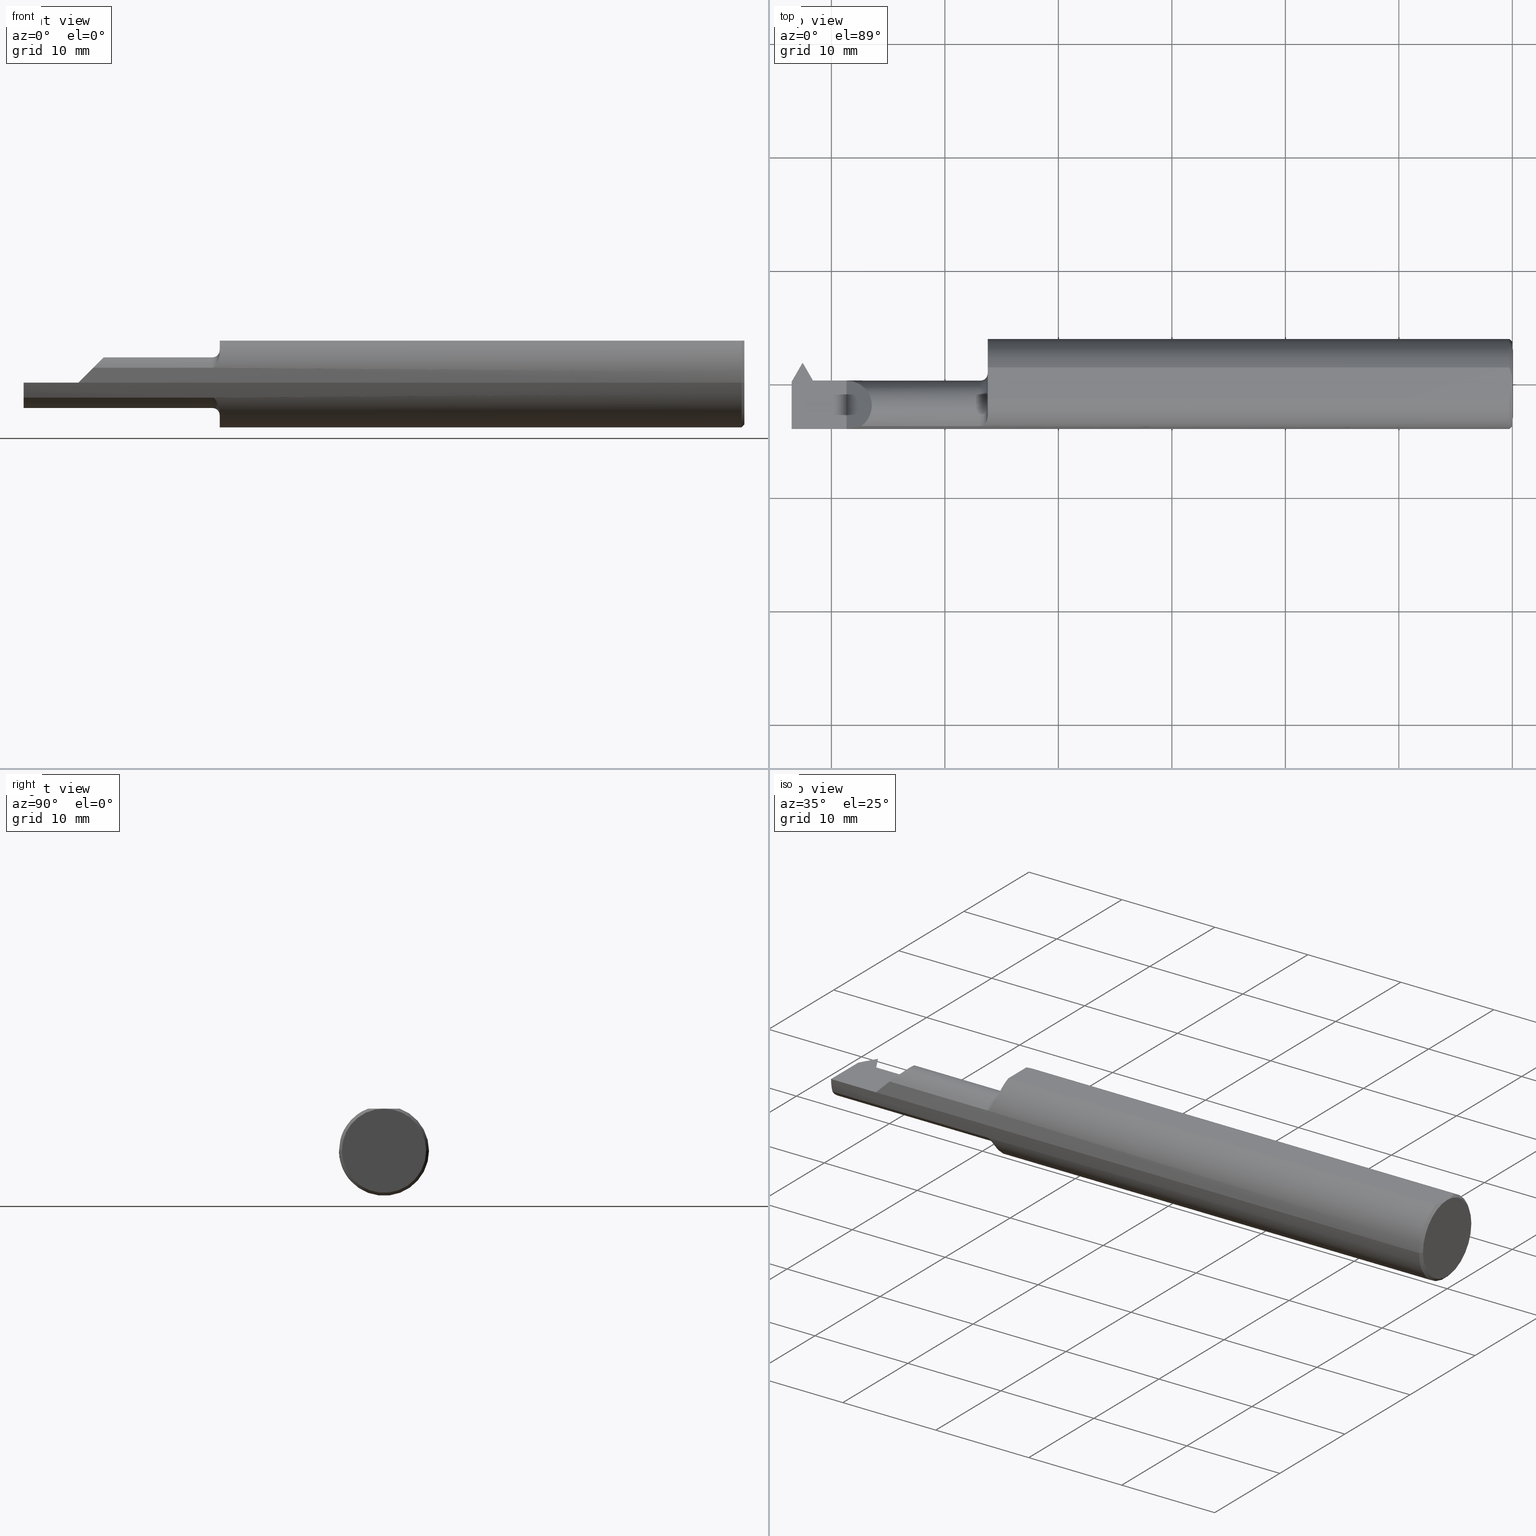
[diagram: canonical four-view strip — front | top / right | iso, engineering-drawing reading convention]
A machine part, canonical four-view strip (front | top / right | iso — engineering-drawing reading convention). The complete STEP part file that produces these views, byte-faithful:
ISO-10303-21;
HEADER;
FILE_DESCRIPTION (( 'STEP AP203' ),
    '1' );
FILE_NAME ('231798-LHTT230600.STEP',
    '2025-01-23T22:07:29',
    ( '' ),
    ( '' ),
    'SwSTEP 2.0',
    'SolidWorks 2024',
    '' );
FILE_SCHEMA (( 'CONFIG_CONTROL_DESIGN' ));
ENDSEC;

DATA;
#1 = LINE ( 'NONE', #204, #719 ) ;
#2 = EDGE_CURVE ( 'NONE', #558, #822, #131, .T. ) ;
#3 = ORIENTED_EDGE ( 'NONE', *, *, #476, .F. ) ;
#4 = AXIS2_PLACEMENT_3D ( 'NONE', #513, #95, #501 ) ;
#5 = FACE_OUTER_BOUND ( 'NONE', #483, .T. ) ;
#6 = VERTEX_POINT ( 'NONE', #440 ) ;
#7 = AXIS2_PLACEMENT_3D ( 'NONE', #378, #597, #190 ) ;
#8 = DIRECTION ( 'NONE',  ( 0.000000000000000000, 0.7071067811865539010, 0.7071067811865411334 ) ) ;
#9 = CARTESIAN_POINT ( 'NONE',  ( -2.310000000000000053, 0.01189999999999987769, 0.000000000000000000 ) ) ;
#10 = ORIENTED_EDGE ( 'NONE', *, *, #268, .F. ) ;
#11 = EDGE_CURVE ( 'NONE', #612, #396, #101, .T. ) ;
#12 = APPROVAL_DATE_TIME ( #399, #861 ) ;
#13 = CARTESIAN_POINT ( 'NONE',  ( -2.206585760359398130, 0.01189999999999993840, 0.1034142396406013825 ) ) ;
#14 = EDGE_LOOP ( 'NONE', ( #700, #841, #724, #642, #74, #38, #120, #850 ) ) ;
#15 = CARTESIAN_POINT ( 'NONE',  ( -2.421108983848621943, -0.04738773832811973147, -0.08318416934540759367 ) ) ;
#16 = PERSON_AND_ORGANIZATION_ROLE ( 'design_owner' ) ;
#17 = CARTESIAN_POINT ( 'NONE',  ( -2.413632881043807465, 0.007084169345407169416, -0.02871226167188161912 ) ) ;
#18 = LINE ( 'NONE', #360, #606 ) ;
#19 = PLANE ( 'NONE',  #48 ) ;
#20 = LINE ( 'NONE', #159, #75 ) ;
#21 = ORIENTED_EDGE ( 'NONE', *, *, #335, .F. ) ;
#22 = DATE_TIME_ROLE ( 'creation_date' ) ;
#23 = CARTESIAN_POINT ( 'NONE',  ( -1.820000000000000284, 0.1561000000000000443, 0.000000000000000000 ) ) ;
#24 = DIRECTION ( 'NONE',  ( 1.000000000000000000, 1.224646799147352961E-16, -0.000000000000000000 ) ) ;
#25 = ADVANCED_FACE ( 'NONE', ( #430 ), #739, .T. ) ;
#26 = DIRECTION ( 'NONE',  ( -1.000000000000000000, -1.224646799147319927E-16, 0.000000000000000000 ) ) ;
#27 = ORIENTED_EDGE ( 'NONE', *, *, #708, .T. ) ;
#28 = CC_DESIGN_APPROVAL ( #524, ( #441 ) ) ;
#29 = CARTESIAN_POINT ( 'NONE',  ( -2.500000000000000000, -0.1561000000000000720, 8.875653457662611807E-19 ) ) ;
#30 = DIRECTION ( 'NONE',  ( -1.000000000000000000, -1.224646799147352961E-16, 0.000000000000000000 ) ) ;
#31 = ORIENTED_EDGE ( 'NONE', *, *, #58, .T. ) ;
#32 = DIRECTION ( 'NONE',  ( -1.301231752219315598E-17, 1.000000000000000000, 1.414195192744475008E-16 ) ) ;
#33 = EDGE_LOOP ( 'NONE', ( #263, #338, #661, #420 ) ) ;
#34 = LINE ( 'NONE', #41, #870 ) ;
#35 = VECTOR ( 'NONE', #236, 39.37007874015748143 ) ;
#36 = ORIENTED_EDGE ( 'NONE', *, *, #93, .F. ) ;
#37 = DIRECTION ( 'NONE',  ( 1.000000000000000000, 1.224646799147352961E-16, -0.000000000000000000 ) ) ;
#38 = ORIENTED_EDGE ( 'NONE', *, *, #232, .F. ) ;
#39 = AXIS2_PLACEMENT_3D ( 'NONE', #810, #352, #358 ) ;
#40 = EDGE_CURVE ( 'NONE', #822, #563, #235, .T. ) ;
#41 = CARTESIAN_POINT ( 'NONE',  ( -1.789208973554242034E-17, 0.1461000000000008681, 1.789208973554290722E-17 ) ) ;
#42 = LINE ( 'NONE', #178, #210 ) ;
#43 = FACE_OUTER_BOUND ( 'NONE', #735, .T. ) ;
#44 = CARTESIAN_POINT ( 'NONE',  ( -1.841954860809190020, -0.1470959542221376148, 0.05225537509141427867 ) ) ;
#45 = DIRECTION ( 'NONE',  ( 0.000000000000000000, -0.7071067811865539010, -0.7071067811865411334 ) ) ;
#46 = CARTESIAN_POINT ( 'NONE',  ( -2.429632881043807924, 0.005796431017288921489, -0.02999999999999957909 ) ) ;
#47 = ORIENTED_EDGE ( 'NONE', *, *, #842, .F. ) ;
#48 = AXIS2_PLACEMENT_3D ( 'NONE', #285, #834, #218 ) ;
#49 = CC_DESIGN_PERSON_AND_ORGANIZATION_ASSIGNMENT ( #737, #132, ( #456 ) ) ;
#50 = CARTESIAN_POINT ( 'NONE',  ( -1.878571113266080284, 1.084593537935991225, 0.000000000000000000 ) ) ;
#51 = MANIFOLD_SOLID_BREP ( 'Cut-Sweep1', #823 ) ;
#52 = DIRECTION ( 'NONE',  ( -1.000000000000000000, -1.301231752219315598E-17, 0.000000000000000000 ) ) ;
#53 = EDGE_LOOP ( 'NONE', ( #260, #217, #31, #293, #361, #71, #287, #270, #139, #380, #392, #341 ) ) ;
#54 = EDGE_CURVE ( 'NONE', #563, #558, #116, .T. ) ;
#55 = PLANE ( 'NONE',  #7 ) ;
#56 = CARTESIAN_POINT ( 'NONE',  ( -1.820000000000000284, 0.1561000000000002108, 0.000000000000000000 ) ) ;
#57 = VERTEX_POINT ( 'NONE', #17 ) ;
#58 = EDGE_CURVE ( 'NONE', #348, #57, #194, .T. ) ;
#59 = DIRECTION ( 'NONE',  ( -1.000000000000000000, -1.301231752219315598E-17, -0.000000000000000000 ) ) ;
#60 = MECHANICAL_CONTEXT ( 'NONE', #678, 'mechanical' ) ;
#61 = ORIENTED_EDGE ( 'NONE', *, *, #488, .T. ) ;
#62 = CARTESIAN_POINT ( 'NONE',  ( 0.000000000000000000, 2.449293598294705921E-16, 0.000000000000000000 ) ) ;
#63 = APPROVAL_PERSON_ORGANIZATION ( #195, #861, #695 ) ;
#64 = DATE_AND_TIME ( #468, #646 ) ;
#65 = ORIENTED_EDGE ( 'NONE', *, *, #733, .T. ) ;
#66 = EDGE_CURVE ( 'NONE', #325, #359, #839, .T. ) ;
#68 = EDGE_CURVE ( 'NONE', #650, #296, #222, .T. ) ;
#67 = AXIS2_PLACEMENT_3D ( 'NONE', #736, #274, #814 ) ;
#69 = DIRECTION ( 'NONE',  ( -1.000000000000000000, -1.553500558300393113E-17, -0.000000000000000000 ) ) ;
#70 = CALENDAR_DATE ( 2025, 23, 1 ) ;
#71 = ORIENTED_EDGE ( 'NONE', *, *, #496, .T. ) ;
#72 = LINE ( 'NONE', #207, #256 ) ;
#73 = DIRECTION ( 'NONE',  ( 0.000000000000000000, -1.000000000000000000, 0.000000000000000000 ) ) ;
#74 = ORIENTED_EDGE ( 'NONE', *, *, #66, .T. ) ;
#75 = VECTOR ( 'NONE', #233, 39.37007874015748854 ) ;
#76 = PLANE ( 'NONE',  #871 ) ;
#77 = AXIS2_PLACEMENT_3D ( 'NONE', #574, #168, #96 ) ;
#78 = CC_DESIGN_DATE_AND_TIME_ASSIGNMENT ( #807, #766, ( #441 ) ) ;
#79 = ORIENTED_EDGE ( 'NONE', *, *, #711, .F. ) ;
#80 = DIRECTION ( 'NONE',  ( -9.201097958895396924E-18, 0.7071067811865539010, 0.7071067811865411334 ) ) ;
#81 = VECTOR ( 'NONE', #295, 39.37007874015748143 ) ;
#82 = EDGE_CURVE ( 'NONE', #795, #402, #772, .T. ) ;
#83 = DIRECTION ( 'NONE',  ( 0.000000000000000000, -0.7071067811865539010, -0.7071067811865411334 ) ) ;
#84 = ORIENTED_EDGE ( 'NONE', *, *, #711, .T. ) ;
#85 = LINE ( 'NONE', #547, #213 ) ;
#86 = PERSON_AND_ORGANIZATION ( #98, #607 ) ;
#87 = ORIENTED_EDGE ( 'NONE', *, *, #125, .T. ) ;
#88 = CARTESIAN_POINT ( 'NONE',  ( -2.310000000000000053, -0.1561000000000000998, 0.000000000000000000 ) ) ;
#89 = APPLICATION_PROTOCOL_DEFINITION ( 'international standard', 'config_control_design', 1994, #651 ) ;
#90 = CARTESIAN_POINT ( 'NONE',  ( -3.241309669837331952E-33, 2.086455426436077518E-16, 0.1461000000000000354 ) ) ;
#91 = DIRECTION ( 'NONE',  ( 1.000000000000000000, 1.224646799147352961E-16, -0.000000000000000000 ) ) ;
#92 = CARTESIAN_POINT ( 'NONE',  ( -2.421108983848621943, 0.01189999999999981004, 0.000000000000000000 ) ) ;
#93 = EDGE_CURVE ( 'NONE', #215, #534, #593, .T. ) ;
#94 = DATE_AND_TIME ( #70, #555 ) ;
#95 = DIRECTION ( 'NONE',  ( -1.000000000000000000, -1.224646799147319927E-16, 0.000000000000000000 ) ) ;
#96 = DIRECTION ( 'NONE',  ( 0.000000000000000000, -1.000000000000000000, -1.776356839400250465E-15 ) ) ;
#97 = ORIENTED_EDGE ( 'NONE', *, *, #68, .F. ) ;
#98 = PERSON ( 'UNSPECIFIED', 'UNSPECIFIED', 'UNSPECIFIED', ('UNSPECIFIED'), ('UNSPECIFIED'), ('UNSPECIFIED') ) ;
#99 = DIRECTION ( 'NONE',  ( -0.8486396879975963703, -0.4899623523104221223, 0.1993679344171976064 ) ) ;
#100 = CARTESIAN_POINT ( 'NONE',  ( -1.835093217728559711, -0.1449997488157369341, -0.05785581108117096583 ) ) ;
#101 = LINE ( 'NONE', #633, #627 ) ;
#102 = DIRECTION ( 'NONE',  ( -0.5000000000000094369, 0.8660254037844332675, 0.000000000000000000 ) ) ;
#103 = CARTESIAN_POINT ( 'NONE',  ( -2.500000000000000000, 0.007075613864141737028, -0.002879099820987786416 ) ) ;
#104 = CARTESIAN_POINT ( 'NONE',  ( -2.413632881043807465, -0.07610000000000008424, 0.000000000000000000 ) ) ;
#105 = DIRECTION ( 'NONE',  ( 0.1993679344171976064, 0.000000000000000000, -0.9799247046208294787 ) ) ;
#106 = ADVANCED_FACE ( 'NONE', ( #163 ), #19, .F. ) ;
#107 = VECTOR ( 'NONE', #102, 39.37007874015748854 ) ;
#108 = AXIS2_PLACEMENT_3D ( 'NONE', #732, #322, #655 ) ;
#109 = AXIS2_PLACEMENT_3D ( 'NONE', #578, #781, #453 ) ;
#110 = CARTESIAN_POINT ( 'NONE',  ( -2.310000000000000053, -0.2500000000000000000, 0.000000000000000000 ) ) ;
#111 = CARTESIAN_POINT ( 'NONE',  ( -2.460717056391643176, 0.07238371841597715517, 0.001329005425271832797 ) ) ;
#112 = AXIS2_PLACEMENT_3D ( 'NONE', #703, #99, #363 ) ;
#113 = LINE ( 'NONE', #852, #785 ) ;
#114 = DIRECTION ( 'NONE',  ( 1.000000000000000000, 1.553500558300393113E-17, -0.000000000000000000 ) ) ;
#115 = EDGE_LOOP ( 'NONE', ( #202, #169, #320, #196, #248, #433, #758, #10 ) ) ;
#116 = CIRCLE ( 'NONE', #470, 0.1461000000000006183 ) ;
#117 = CARTESIAN_POINT ( 'NONE',  ( -1.820000000000000284, -0.1142537450715741948, 0.1063639588254092216 ) ) ;
#118 = CYLINDRICAL_SURFACE ( 'NONE', #390, 0.1561000000000000165 ) ;
#119 = CARTESIAN_POINT ( 'NONE',  ( 0.000000000000000000, 0.000000000000000000, 0.000000000000000000 ) ) ;
#120 = ORIENTED_EDGE ( 'NONE', *, *, #335, .T. ) ;
#121 = ADVANCED_FACE ( 'NONE', ( #794 ), #664, .T. ) ;
#122 = DIRECTION ( 'NONE',  ( 1.000000000000000000, 1.224646799147352961E-16, -0.000000000000000000 ) ) ;
#123 = DIRECTION ( 'NONE',  ( -1.000000000000000000, -1.301231752219315598E-17, -0.000000000000000000 ) ) ;
#124 = EDGE_LOOP ( 'NONE', ( #487, #546, #780, #581 ) ) ;
#125 = EDGE_CURVE ( 'NONE', #189, #612, #395, .T. ) ;
#126 = PRODUCT_DEFINITION_SHAPE ( 'NONE', 'NONE',  #456 ) ;
#127 = DIRECTION ( 'NONE',  ( 0.5000000000000074385, -0.8660254037844342667, 0.000000000000000000 ) ) ;
#128 =( NAMED_UNIT ( * ) SI_UNIT ( $, .STERADIAN. ) SOLID_ANGLE_UNIT ( ) );
#129 = EDGE_LOOP ( 'NONE', ( #314, #389, #345, #160 ) ) ;
#130 = CARTESIAN_POINT ( 'NONE',  ( -2.500000000000000000, -0.04738773832811999515, -0.08318416934540782959 ) ) ;
#131 = CIRCLE ( 'NONE', #442, 0.1461000000000006183 ) ;
#132 = PERSON_AND_ORGANIZATION_ROLE ( 'creator' ) ;
#133 = ORIENTED_EDGE ( 'NONE', *, *, #368, .T. ) ;
#134 = CARTESIAN_POINT ( 'NONE',  ( -2.413632881043807465, -0.04738773832811999515, -0.08318416934540782959 ) ) ;
#135 = APPROVAL_ROLE ( '' ) ;
#136 = EDGE_LOOP ( 'NONE', ( #3, #276, #251, #36 ) ) ;
#137 = B_SPLINE_CURVE_WITH_KNOTS ( 'NONE', 3,
 ( #117, #174, #377, #242, #587, #847, #505, #289, #654, #572, #170, #44, #837, #647 ),
 .UNSPECIFIED., .F., .F.,
 ( 4, 2, 2, 2, 2, 2, 4 ),
 ( 0.0002357998142103234817, 0.0006937643599539127393, 0.001151728905697502105, 0.001609693451441091688, 0.001838675724312891033, 0.001953166860748790489, 0.002067657997184689945 ),
 .UNSPECIFIED. ) ;
#138 = CARTESIAN_POINT ( 'NONE',  ( -2.462506354991546242, 0.002980892972014761392, -0.08799999999999992550 ) ) ;
#139 = ORIENTED_EDGE ( 'NONE', *, *, #864, .T. ) ;
#140 = DIRECTION ( 'NONE',  ( -1.000000000000000000, 0.000000000000000000, 4.671396556664535003E-18 ) ) ;
#141 = CC_DESIGN_PERSON_AND_ORGANIZATION_ASSIGNMENT ( #191, #16, ( #530 ) ) ;
#142 = CARTESIAN_POINT ( 'NONE',  ( -2.442105574943187030, -0.01580690852369160890, -0.1361838062394665483 ) ) ;
#143 = ORIENTED_EDGE ( 'NONE', *, *, #722, .T. ) ;
#144 = PLANE ( 'NONE',  #731 ) ;
#145 = ADVANCED_FACE ( 'NONE', ( #806 ), #391, .F. ) ;
#146 = CARTESIAN_POINT ( 'NONE',  ( -2.415005414865911249, 0.005796431017289206851, -0.02999999999999943337 ) ) ;
#147 = ORIENTED_EDGE ( 'NONE', *, *, #867, .T. ) ;
#148 = PERSON_AND_ORGANIZATION ( #98, #607 ) ;
#149 = AXIS2_PLACEMENT_3D ( 'NONE', #504, #770, #161 ) ;
#150 = VERTEX_POINT ( 'NONE', #463 ) ;
#151 = LINE ( 'NONE', #197, #844 ) ;
#152 = APPROVAL_STATUS ( 'not_yet_approved' ) ;
#153 = FACE_OUTER_BOUND ( 'NONE', #553, .T. ) ;
#154 = DIRECTION ( 'NONE',  ( -1.224646799147352961E-16, 1.000000000000000000, 0.000000000000000000 ) ) ;
#155 = CARTESIAN_POINT ( 'NONE',  ( -2.274912119307999969, -0.1531282856005203030, 0.03508788069200007714 ) ) ;
#156 = ADVANCED_FACE ( 'NONE', ( #182 ), #55, .F. ) ;
#157 = PERSON_AND_ORGANIZATION_ROLE ( 'classification_officer' ) ;
#158 = ORIENTED_EDGE ( 'NONE', *, *, #526, .F. ) ;
#159 = CARTESIAN_POINT ( 'NONE',  ( -1.819714732526711343, -1.050612790672645458, -0.03000000000000922762 ) ) ;
#160 = ORIENTED_EDGE ( 'NONE', *, *, #542, .F. ) ;
#161 = DIRECTION ( 'NONE',  ( 1.301231752219315598E-17, -1.000000000000000000, 0.000000000000000000 ) ) ;
#162 = DIRECTION ( 'NONE',  ( -1.230512889522860364E-16, 1.000000000000000000, 8.881784197001252323E-16 ) ) ;
#163 = FACE_OUTER_BOUND ( 'NONE', #845, .T. ) ;
#164 = ORIENTED_EDGE ( 'NONE', *, *, #778, .T. ) ;
#165 = CC_DESIGN_PERSON_AND_ORGANIZATION_ASSIGNMENT ( #351, #157, ( #441 ) ) ;
#166 = CARTESIAN_POINT ( 'NONE',  ( 2.745045800288798215E-17, -0.1461000000000003685, 0.000000000000000000 ) ) ;
#167 = DIRECTION ( 'NONE',  ( 1.000000000000000000, 1.224646799147352961E-16, -0.000000000000000000 ) ) ;
#168 = DIRECTION ( 'NONE',  ( 1.000000000000000000, 1.301231752219315598E-17, 0.000000000000000000 ) ) ;
#169 = ORIENTED_EDGE ( 'NONE', *, *, #179, .F. ) ;
#170 = CARTESIAN_POINT ( 'NONE',  ( -1.839325941459024838, -0.1465552322353794734, 0.05375321273095784447 ) ) ;
#171 = VERTEX_POINT ( 'NONE', #315 ) ;
#172 = PLANE ( 'NONE',  #489 ) ;
#173 = ORIENTED_EDGE ( 'NONE', *, *, #804, .F. ) ;
#174 = CARTESIAN_POINT ( 'NONE',  ( -1.819999999999967644, -0.1183584908119261897, 0.1019547343237290349 ) ) ;
#175 = CARTESIAN_POINT ( 'NONE',  ( -2.500000000000000000, -0.07610000000000008424, 0.000000000000000000 ) ) ;
#176 = EDGE_LOOP ( 'NONE', ( #540, #866, #84 ) ) ;
#177 = CARTESIAN_POINT ( 'NONE',  ( -1.823462366684950542, -0.1324922991513198256, -0.08274570526434622819 ) ) ;
#178 = CARTESIAN_POINT ( 'NONE',  ( -1.878571113266080284, 1.084593537935991225, 0.000000000000000000 ) ) ;
#179 = EDGE_CURVE ( 'NONE', #437, #206, #42, .T. ) ;
#180 = ORIENTED_EDGE ( 'NONE', *, *, #531, .F. ) ;
#181 = EDGE_CURVE ( 'NONE', #638, #500, #856, .T. ) ;
#182 = FACE_OUTER_BOUND ( 'NONE', #385, .T. ) ;
#183 = FACE_OUTER_BOUND ( 'NONE', #808, .T. ) ;
#184 = ORIENTED_EDGE ( 'NONE', *, *, #733, .F. ) ;
#185 = AXIS2_PLACEMENT_3D ( 'NONE', #298, #779, #105 ) ;
#186 = DIRECTION ( 'NONE',  ( 0.4999999999999905076, 0.8660254037844440367, -1.539562105255997719E-14 ) ) ;
#187 = VECTOR ( 'NONE', #827, 39.37007874015748143 ) ;
#188 = CARTESIAN_POINT ( 'NONE',  ( -1.845000000000000195, -0.07610000000000007037, 0.000000000000000000 ) ) ;
#189 = VERTEX_POINT ( 'NONE', #858 ) ;
#190 = DIRECTION ( 'NONE',  ( 0.000000000000000000, 1.000000000000000000, 1.414195192744475008E-16 ) ) ;
#191 = PERSON_AND_ORGANIZATION ( #98, #607 ) ;
#192 = ORIENTED_EDGE ( 'NONE', *, *, #466, .T. ) ;
#193 = DIRECTION ( 'NONE',  ( -0.7071067811865512365, 0.000000000000000000, -0.7071067811865436870 ) ) ;
#194 = CIRCLE ( 'NONE', #425, 0.08800000000000000877 ) ;
#195 = PERSON_AND_ORGANIZATION ( #98, #607 ) ;
#196 = ORIENTED_EDGE ( 'NONE', *, *, #582, .T. ) ;
#197 = CARTESIAN_POINT ( 'NONE',  ( -2.399999999999999911, -0.07610000000000007037, -0.08799999999999992550 ) ) ;
#198 = AXIS2_PLACEMENT_3D ( 'NONE', #782, #445, #424 ) ;
#199 = CARTESIAN_POINT ( 'NONE',  ( -2.413632881043807465, 0.6503230061517655258, 0.6145265751344650695 ) ) ;
#200 = VERTEX_POINT ( 'NONE', #659 ) ;
#201 = CARTESIAN_POINT ( 'NONE',  ( -2.421108983848621943, -0.07610000000000008424, 0.000000000000000000 ) ) ;
#202 = ORIENTED_EDGE ( 'NONE', *, *, #722, .F. ) ;
#203 = ADVANCED_FACE ( 'NONE', ( #243 ), #522, .T. ) ;
#204 = CARTESIAN_POINT ( 'NONE',  ( -2.413632881043807465, 0.6503230061517655258, 0.6145265751344650695 ) ) ;
#205 = EDGE_CURVE ( 'NONE', #798, #590, #588, .T. ) ;
#206 = VERTEX_POINT ( 'NONE', #525 ) ;
#207 = CARTESIAN_POINT ( 'NONE',  ( 1.789208973554242034E-17, -0.1461000000000003962, 0.000000000000000000 ) ) ;
#208 = PERSON_AND_ORGANIZATION_ROLE ( 'design_supplier' ) ;
#209 = VECTOR ( 'NONE', #569, 39.37007874015748143 ) ;
#210 = VECTOR ( 'NONE', #601, 39.37007874015748143 ) ;
#211 = ORIENTED_EDGE ( 'NONE', *, *, #82, .F. ) ;
#212 = CC_DESIGN_APPROVAL ( #643, ( #456 ) ) ;
#213 = VECTOR ( 'NONE', #332, 39.37007874015748854 ) ;
#214 = CARTESIAN_POINT ( 'NONE',  ( -2.500000000000000000, -6.123233995736767268E-17, 0.000000000000000000 ) ) ;
#215 = VERTEX_POINT ( 'NONE', #670 ) ;
#216 = LINE ( 'NONE', #768, #412 ) ;
#217 = ORIENTED_EDGE ( 'NONE', *, *, #309, .T. ) ;
#218 = DIRECTION ( 'NONE',  ( 1.000000000000000000, 0.000000000000000000, -0.000000000000000000 ) ) ;
#219 = CARTESIAN_POINT ( 'NONE',  ( -2.500000000000000000, -6.123233995736767268E-17, 0.000000000000000000 ) ) ;
#220 = FACE_OUTER_BOUND ( 'NONE', #625, .T. ) ;
#221 = LINE ( 'NONE', #103, #225 ) ;
#222 = LINE ( 'NONE', #648, #429 ) ;
#223 = LINE ( 'NONE', #644, #107 ) ;
#224 = CC_DESIGN_PERSON_AND_ORGANIZATION_ASSIGNMENT ( #273, #208, ( #828 ) ) ;
#225 = VECTOR ( 'NONE', #450, 39.37007874015748143 ) ;
#226 = CARTESIAN_POINT ( 'NONE',  ( -1.820000000000000284, -0.1142537450715595260, -0.1063639588254144813 ) ) ;
#227 = ORIENTED_EDGE ( 'NONE', *, *, #368, .F. ) ;
#228 = DIRECTION ( 'NONE',  ( 2.049582212105629957E-14, -0.9799247046208295897, 0.1993679344171976342 ) ) ;
#229 = ORIENTED_EDGE ( 'NONE', *, *, #760, .T. ) ;
#230 = CARTESIAN_POINT ( 'NONE',  ( -2.500000000000000000, -0.1472695137976348934, -0.05175809410911740016 ) ) ;
#231 = EDGE_LOOP ( 'NONE', ( #290, #184, #87, #742 ) ) ;
#232 = EDGE_CURVE ( 'NONE', #57, #359, #113, .T. ) ;
#233 = DIRECTION ( 'NONE',  ( 0.5000000000000062172, -0.8660254037844350439, -7.288689336845252781E-15 ) ) ;
#234 = ORIENTED_EDGE ( 'NONE', *, *, #268, .T. ) ;
#235 = CIRCLE ( 'NONE', #349, 0.1461000000000006183 ) ;
#236 = DIRECTION ( 'NONE',  ( 1.000000000000000000, 1.301231752219315598E-17, 0.000000000000000000 ) ) ;
#237 = CARTESIAN_POINT ( 'NONE',  ( -2.429632881043807480, 0.6503230061517655258, 0.6145265751344650695 ) ) ;
#238 = VECTOR ( 'NONE', #353, 39.37007874015748854 ) ;
#239 = ORIENTED_EDGE ( 'NONE', *, *, #2, .T. ) ;
#240 = VECTOR ( 'NONE', #127, 39.37007874015748854 ) ;
#241 = EDGE_CURVE ( 'NONE', #676, #475, #665, .T. ) ;
#242 = CARTESIAN_POINT ( 'NONE',  ( -1.822189633566586364, -0.1292798516107536988, 0.08769141204669660128 ) ) ;
#243 = FACE_OUTER_BOUND ( 'NONE', #231, .T. ) ;
#244 = ORIENTED_EDGE ( 'NONE', *, *, #824, .T. ) ;
#245 = ADVANCED_FACE ( 'NONE', ( #726 ), #118, .T. ) ;
#246 = DIRECTION ( 'NONE',  ( 0.4999999999999878431, 0.8660254037844455910, 0.000000000000000000 ) ) ;
#247 = DIRECTION ( 'NONE',  ( 1.000000000000000000, 2.091571120149166951E-14, 0.000000000000000000 ) ) ;
#248 = ORIENTED_EDGE ( 'NONE', *, *, #181, .T. ) ;
#249 = LOCAL_TIME ( 14, 7, 29.00000000000000000, #741 ) ;
#250 = CARTESIAN_POINT ( 'NONE',  ( -1.820000000000000284, 2.204364238465230892E-17, 0.000000000000000000 ) ) ;
#251 = ORIENTED_EDGE ( 'NONE', *, *, #596, .T. ) ;
#252 = VECTOR ( 'NONE', #802, 39.37007874015748854 ) ;
#253 = EDGE_CURVE ( 'NONE', #6, #751, #517, .T. ) ;
#254 = VECTOR ( 'NONE', #324, 39.37007874015748854 ) ;
#255 = DIRECTION ( 'NONE',  ( 0.000000000000000000, -1.000000000000000000, 0.000000000000000000 ) ) ;
#256 = VECTOR ( 'NONE', #613, 39.37007874015748854 ) ;
#257 = CARTESIAN_POINT ( 'NONE',  ( -2.481122797377521838, -0.02926373109667449249, -0.08799999999999999489 ) ) ;
#258 = ORIENTED_EDGE ( 'NONE', *, *, #381, .F. ) ;
#259 = CARTESIAN_POINT ( 'NONE',  ( 6.904318952737417485E-16, 0.009396510398413217627, 0.1461000000000000631 ) ) ;
#260 = ORIENTED_EDGE ( 'NONE', *, *, #337, .F. ) ;
#261 = DESIGN_CONTEXT ( 'detailed design', #651, 'design' ) ;
#262 = CYLINDRICAL_SURFACE ( 'NONE', #67, 0.1561000000000000165 ) ;
#263 = ORIENTED_EDGE ( 'NONE', *, *, #40, .F. ) ;
#264 = CARTESIAN_POINT ( 'NONE',  ( -1.820000000000000284, -0.05497272050753903433, 0.1461000000000000076 ) ) ;
#265 = EDGE_CURVE ( 'NONE', #657, #676, #518, .T. ) ;
#266 = FACE_OUTER_BOUND ( 'NONE', #367, .T. ) ;
#267 = EDGE_LOOP ( 'NONE', ( #765, #523, #873, #334 ) ) ;
#268 = EDGE_CURVE ( 'NONE', #689, #400, #312, .T. ) ;
#269 = CARTESIAN_POINT ( 'NONE',  ( -0.006876379561361965764, 0.04610291843171875070, 0.1461000000000000354 ) ) ;
#270 = ORIENTED_EDGE ( 'NONE', *, *, #867, .F. ) ;
#271 =( BOUNDED_CURVE ( )  B_SPLINE_CURVE ( 3, ( #9, #13, #745, #549 ),
 .UNSPECIFIED., .F., .T. ) 
 B_SPLINE_CURVE_WITH_KNOTS ( ( 4, 4 ),
 ( 1.570796326794896558, 4.083606959790376578 ),
 .UNSPECIFIED. ) 
 CURVE ( )  GEOMETRIC_REPRESENTATION_ITEM ( )  RATIONAL_B_SPLINE_CURVE ( ( 1.000000000000000000, 0.5394915924057046563, 0.5394915924057046563, 1.000000000000000000 ) ) 
 REPRESENTATION_ITEM ( '' )  );
#272 = CARTESIAN_POINT ( 'NONE',  ( -2.500000000000000000, -0.1561000000000000720, 8.875653457662609881E-19 ) ) ;
#273 = PERSON_AND_ORGANIZATION ( #98, #607 ) ;
#274 = DIRECTION ( 'NONE',  ( 1.000000000000000000, 1.224646799147352961E-16, -0.000000000000000000 ) ) ;
#275 = CC_DESIGN_SECURITY_CLASSIFICATION ( #441, ( #828 ) ) ;
#276 = ORIENTED_EDGE ( 'NONE', *, *, #2, .F. ) ;
#277 = CARTESIAN_POINT ( 'NONE',  ( -2.462506354991547575, 0.06098089297201303438, -0.03000000000000117503 ) ) ;
#278 = APPROVAL_DATE_TIME ( #64, #643 ) ;
#279 = EDGE_CURVE ( 'NONE', #469, #603, #743, .T. ) ;
#280 = CARTESIAN_POINT ( 'NONE',  ( -0.006903212852520313608, -0.04617911398309882537, 0.1461000000000000354 ) ) ;
#281 = VECTOR ( 'NONE', #308, 39.37007874015748143 ) ;
#282 = CARTESIAN_POINT ( 'NONE',  ( 9.558368267345076472E-18, 2.449293598294705921E-16, 0.000000000000000000 ) ) ;
#283 = CARTESIAN_POINT ( 'NONE',  ( -2.421108983848621943, 0.01189999999999981004, 0.000000000000000000 ) ) ;
#284 = VECTOR ( 'NONE', #552, 39.37007874015748143 ) ;
#285 = CARTESIAN_POINT ( 'NONE',  ( -2.399999999999999911, -0.07610000000000008424, -0.08799999999999999489 ) ) ;
#286 = CARTESIAN_POINT ( 'NONE',  ( -2.417151050136866708, 0.01027984334874565420, -0.01945386571184650609 ) ) ;
#287 = ORIENTED_EDGE ( 'NONE', *, *, #347, .T. ) ;
#288 = SECURITY_CLASSIFICATION_LEVEL ( 'unclassified' ) ;
#289 = CARTESIAN_POINT ( 'NONE',  ( -1.833413277050720991, -0.1440082460785117036, 0.06029952348881725821 ) ) ;
#290 = ORIENTED_EDGE ( 'NONE', *, *, #842, .T. ) ;
#291 = PRODUCT_RELATED_PRODUCT_CATEGORY ( 'detail', '', ( #530 ) ) ;
#292 = CARTESIAN_POINT ( 'NONE',  ( -2.461493645008453690, 0.06098089297201398501, -0.02999999999999987052 ) ) ;
#293 = ORIENTED_EDGE ( 'NONE', *, *, #232, .T. ) ;
#294 = ADVANCED_FACE ( 'NONE', ( #537 ), #383, .F. ) ;
#295 = DIRECTION ( 'NONE',  ( -1.000000000000000000, 0.000000000000000000, 0.000000000000000000 ) ) ;
#296 = VERTEX_POINT ( 'NONE', #409 ) ;
#297 = VECTOR ( 'NONE', #519, 39.37007874015748854 ) ;
#298 = CARTESIAN_POINT ( 'NONE',  ( -2.421108983848621943, -3.150423885367268703E-17, 0.000000000000000000 ) ) ;
#299 = ORIENTED_EDGE ( 'NONE', *, *, #698, .F. ) ;
#300 =( GEOMETRIC_REPRESENTATION_CONTEXT ( 3 ) GLOBAL_UNCERTAINTY_ASSIGNED_CONTEXT ( ( #326 ) ) GLOBAL_UNIT_ASSIGNED_CONTEXT ( ( #316, #853, #128 ) ) REPRESENTATION_CONTEXT ( 'NONE', 'WORKASPACE' ) );
#301 = AXIS2_PLACEMENT_3D ( 'NONE', #682, #551, #140 ) ;
#302 = CARTESIAN_POINT ( 'NONE',  ( -2.500000000000000000, -6.123233995736767268E-17, 0.000000000000000000 ) ) ;
#303 = ADVANCED_FACE ( 'NONE', ( #333 ), #418, .T. ) ;
#304 = CARTESIAN_POINT ( 'NONE',  ( -1.833431488668993969, -0.1440181054450020148, -0.06027475888573605861 ) ) ;
#305 = DIRECTION ( 'NONE',  ( 1.000000000000000000, -0.000000000000000000, 0.000000000000000000 ) ) ;
#306 = LINE ( 'NONE', #585, #297 ) ;
#307 = ORIENTED_EDGE ( 'NONE', *, *, #600, .F. ) ;
#308 = DIRECTION ( 'NONE',  ( -0.000000000000000000, 1.000000000000000000, -0.000000000000000000 ) ) ;
#309 = EDGE_CURVE ( 'NONE', #575, #348, #753, .T. ) ;
#310 = ADVANCED_FACE ( 'NONE', ( #5 ), #76, .T. ) ;
#311 = CARTESIAN_POINT ( 'NONE',  ( -1.843446618368614676, -0.1472695137976343938, -0.05175809410911846181 ) ) ;
#312 = LINE ( 'NONE', #800, #240 ) ;
#313 = CARTESIAN_POINT ( 'NONE',  ( -2.399999999999999911, 0.002980892972014675957, -0.08799999999999999489 ) ) ;
#314 = ORIENTED_EDGE ( 'NONE', *, *, #596, .F. ) ;
#315 = CARTESIAN_POINT ( 'NONE',  ( -1.845000000000000195, -0.1472695137976347268, -0.05175809410911797609 ) ) ;
#316 =( CONVERSION_BASED_UNIT ( 'INCH', #589 ) LENGTH_UNIT ( ) NAMED_UNIT ( #545 ) );
#317 = ORIENTED_EDGE ( 'NONE', *, *, #403, .F. ) ;
#318 = CARTESIAN_POINT ( 'NONE',  ( -1.820000000000000284, -0.07610000000000007037, 0.000000000000000000 ) ) ;
#319 = CARTESIAN_POINT ( 'NONE',  ( 9.558368267345107287E-18, 1.170562510367581579E-33, 0.000000000000000000 ) ) ;
#320 = ORIENTED_EDGE ( 'NONE', *, *, #381, .T. ) ;
#321 = CC_DESIGN_DATE_AND_TIME_ASSIGNMENT ( #560, #22, ( #456 ) ) ;
#322 = DIRECTION ( 'NONE',  ( -0.7745966692414938404, 0.4472135954999448271, -0.4472135954999529317 ) ) ;
#323 = ADVANCED_FACE ( 'NONE', ( #266 ), #614, .F. ) ;
#324 = DIRECTION ( 'NONE',  ( -0.4999999999999838463, -0.8660254037844478114, 0.000000000000000000 ) ) ;
#325 = VERTEX_POINT ( 'NONE', #146 ) ;
#326 = UNCERTAINTY_MEASURE_WITH_UNIT (LENGTH_MEASURE( 1.000000000000000082E-05 ), #316, 'distance_accuracy_value', 'NONE');
#327 = VECTOR ( 'NONE', #502, 39.37007874015748143 ) ;
#328 = CARTESIAN_POINT ( 'NONE',  ( -2.415267408189822440, 0.007084169345407244009, -0.02871226167188149769 ) ) ;
#329 = COORDINATED_UNIVERSAL_TIME_OFFSET ( 8, 0, .BEHIND. ) ;
#330 = EDGE_LOOP ( 'NONE', ( #570, #529, #869, #498, #573, #860, #133, #681 ) ) ;
#331 = VECTOR ( 'NONE', #69, 39.37007874015748143 ) ;
#332 = DIRECTION ( 'NONE',  ( -0.1955200734030769494, 0.1955200734030728693, 0.9610118635026896339 ) ) ;
#333 = FACE_OUTER_BOUND ( 'NONE', #129, .T. ) ;
#334 = ORIENTED_EDGE ( 'NONE', *, *, #488, .F. ) ;
#335 = EDGE_CURVE ( 'NONE', #57, #348, #1, .T. ) ;
#336 = CARTESIAN_POINT ( 'NONE',  ( -2.258241905890881807, -0.1472695137976346713, 0.05175809410911782343 ) ) ;
#337 = EDGE_CURVE ( 'NONE', #575, #402, #449, .T. ) ;
#338 = ORIENTED_EDGE ( 'NONE', *, *, #476, .T. ) ;
#339 = FACE_OUTER_BOUND ( 'NONE', #14, .T. ) ;
#340 = DIRECTION ( 'NONE',  ( -1.000000000000000000, -1.224646799147319927E-16, 0.000000000000000000 ) ) ;
#341 = ORIENTED_EDGE ( 'NONE', *, *, #632, .F. ) ;
#342 = CONICAL_SURFACE ( 'NONE', #692, 0.1461000000000006183, 0.7853981633974638221 ) ;
#343 = DIRECTION ( 'NONE',  ( 1.224646799147319927E-16, -1.000000000000000000, 0.000000000000000000 ) ) ;
#344 = CARTESIAN_POINT ( 'NONE',  ( -2.399999999999999911, 0.06098089297201405440, -0.02999999999999999542 ) ) ;
#345 = ORIENTED_EDGE ( 'NONE', *, *, #432, .F. ) ;
#346 = CARTESIAN_POINT ( 'NONE',  ( 6.991088141801334601E-16, 0.005796431017352499104, -0.02999999999993635535 ) ) ;
#347 = EDGE_CURVE ( 'NONE', #500, #356, #271, .T. ) ;
#348 = VERTEX_POINT ( 'NONE', #134 ) ;
#349 = AXIS2_PLACEMENT_3D ( 'NONE', #709, #24, #154 ) ;
#350 = DIRECTION ( 'NONE',  ( 0.000000000000000000, -0.7071067811865539010, -0.7071067811865411334 ) ) ;
#351 = PERSON_AND_ORGANIZATION ( #98, #607 ) ;
#352 = DIRECTION ( 'NONE',  ( 1.000000000000000000, 1.301231752219315598E-17, 0.000000000000000000 ) ) ;
#353 = DIRECTION ( 'NONE',  ( -0.1423964981743713332, 0.6999011492016904423, 0.6999011492016776748 ) ) ;
#354 = B_SPLINE_CURVE_WITH_KNOTS ( 'NONE', 3,
 ( #482, #259, #750, #414, #269, #679 ),
 .UNSPECIFIED., .F., .F.,
 ( 4, 2, 4 ),
 ( 0.002914391749015499914, 0.003623333355014890598, 0.004332274961014280848 ),
 .UNSPECIFIED. ) ;
#355 = FACE_OUTER_BOUND ( 'NONE', #53, .T. ) ;
#356 = VERTEX_POINT ( 'NONE', #336 ) ;
#357 = APPROVAL_ROLE ( '' ) ;
#358 = DIRECTION ( 'NONE',  ( -1.301231752219315598E-17, 1.000000000000000000, 0.000000000000000000 ) ) ;
#359 = VERTEX_POINT ( 'NONE', #328 ) ;
#360 = CARTESIAN_POINT ( 'NONE',  ( -1.820000000000000284, 0.1811000000000001220, 0.1461000000000000354 ) ) ;
#361 = ORIENTED_EDGE ( 'NONE', *, *, #663, .F. ) ;
#362 = ADVANCED_FACE ( 'NONE', ( #609 ), #262, .T. ) ;
#363 = DIRECTION ( 'NONE',  ( 0.5000000000000075495, -0.8660254037844342667, 0.000000000000000000 ) ) ;
#364 = CARTESIAN_POINT ( 'NONE',  ( -1.826939195357871082, -0.1382843393702950230, -0.07265330384103631245 ) ) ;
#365 = DIRECTION ( 'NONE',  ( -1.224646799147352961E-16, 1.000000000000000000, 0.000000000000000000 ) ) ;
#366 = CARTESIAN_POINT ( 'NONE',  ( -0.009999999999999073866, 2.437047130303233649E-16, 0.000000000000000000 ) ) ;
#367 = EDGE_LOOP ( 'NONE', ( #617, #173, #520, #317 ) ) ;
#368 = EDGE_CURVE ( 'NONE', #475, #215, #479, .T. ) ;
#369 = DIRECTION ( 'NONE',  ( 1.000000000000000000, 1.224646799147352961E-16, -0.000000000000000000 ) ) ;
#370 = CARTESIAN_POINT ( 'NONE',  ( -3.241309669837331952E-33, 2.086455426436077518E-16, 0.1461000000000000354 ) ) ;
#371 = CARTESIAN_POINT ( 'NONE',  ( -2.417541387222652105, 0.01826113337712914966, -0.01753529764015979500 ) ) ;
#372 = AXIS2_PLACEMENT_3D ( 'NONE', #319, #723, #666 ) ;
#373 = CARTESIAN_POINT ( 'NONE',  ( -2.258241905890881807, -0.1472695137976346713, 0.05175809410911782343 ) ) ;
#374 = ORIENTED_EDGE ( 'NONE', *, *, #673, .F. ) ;
#375 = CIRCLE ( 'NONE', #109, 0.1561000000000000165 ) ;
#376 = AXIS2_PLACEMENT_3D ( 'NONE', #62, #340, #684 ) ;
#377 = CARTESIAN_POINT ( 'NONE',  ( -1.820448686022200002, -0.1221823836830937121, 0.09733719174477606373 ) ) ;
#378 = CARTESIAN_POINT ( 'NONE',  ( -2.500000000000000000, 0.1811000000000001220, 0.1461000000000000354 ) ) ;
#379 = LINE ( 'NONE', #313, #799 ) ;
#380 = ORIENTED_EDGE ( 'NONE', *, *, #471, .F. ) ;
#381 = EDGE_CURVE ( 'NONE', #437, #465, #825, .T. ) ;
#382 = CARTESIAN_POINT ( 'NONE',  ( -1.845000000000000195, -0.1472695137976347268, -0.05175809410911797609 ) ) ;
#383 = PLANE ( 'NONE',  #652 ) ;
#384 = LINE ( 'NONE', #533, #413 ) ;
#385 = EDGE_LOOP ( 'NONE', ( #374, #730, #815, #455, #696 ) ) ;
#386 = CARTESIAN_POINT ( 'NONE',  ( -2.133054491924311069, -0.1472695137976346713, -0.05175809410911787894 ) ) ;
#387 = CARTESIAN_POINT ( 'NONE',  ( -2.500000000000000000, -6.123233995736767268E-17, 0.000000000000000000 ) ) ;
#388 = DIRECTION ( 'NONE',  ( 0.000000000000000000, -0.3420201433256631063, -0.9396926207859103153 ) ) ;
#389 = ORIENTED_EDGE ( 'NONE', *, *, #54, .F. ) ;
#390 = AXIS2_PLACEMENT_3D ( 'NONE', #387, #122, #721 ) ;
#391 = PLANE ( 'NONE',  #740 ) ;
#392 = ORIENTED_EDGE ( 'NONE', *, *, #279, .T. ) ;
#393 = EDGE_CURVE ( 'NONE', #563, #150, #354, .T. ) ;
#394 = LINE ( 'NONE', #346, #494 ) ;
#395 = LINE ( 'NONE', #451, #478 ) ;
#396 = VERTEX_POINT ( 'NONE', #138 ) ;
#397 = EDGE_CURVE ( 'NONE', #798, #400, #398, .T. ) ;
#398 = LINE ( 'NONE', #142, #284 ) ;
#399 = DATE_AND_TIME ( #611, #561 ) ;
#400 = VERTEX_POINT ( 'NONE', #407 ) ;
#401 = DIRECTION ( 'NONE',  ( 1.000000000000000000, 1.224646799147352961E-16, -0.000000000000000000 ) ) ;
#402 = VERTEX_POINT ( 'NONE', #486 ) ;
#403 = EDGE_CURVE ( 'NONE', #751, #612, #693, .T. ) ;
#404 = VECTOR ( 'NONE', #818, 39.37007874015748143 ) ;
#405 = PLANE ( 'NONE',  #301 ) ;
#406 = ADVANCED_FACE ( 'NONE', ( #674 ), #541, .T. ) ;
#407 = CARTESIAN_POINT ( 'NONE',  ( -2.426108983848622280, 0.01189999999999981004, 0.000000000000000000 ) ) ;
#408 = EDGE_LOOP ( 'NONE', ( #811, #629, #229, #717 ) ) ;
#409 = CARTESIAN_POINT ( 'NONE',  ( -0.009999999999999073866, -0.05497272050753881228, 0.1461000000000000076 ) ) ;
#410 = ORIENTED_EDGE ( 'NONE', *, *, #600, .T. ) ;
#411 = CARTESIAN_POINT ( 'NONE',  ( -2.429632881043807480, -0.05220356898271236862, -0.08800000000000009204 ) ) ;
#412 = VECTOR ( 'NONE', #350, 39.37007874015748143 ) ;
#413 = VECTOR ( 'NONE', #247, 39.37007874015748143 ) ;
#414 = CARTESIAN_POINT ( 'NONE',  ( -0.004370115738486220897, 0.03710696786819750459, 0.1461000000000000076 ) ) ;
#415 = ORIENTED_EDGE ( 'NONE', *, *, #632, .T. ) ;
#416 = ADVANCED_FACE ( 'NONE', ( #153 ), #833, .T. ) ;
#417 = VECTOR ( 'NONE', #658, 39.37007874015748143 ) ;
#418 = CONICAL_SURFACE ( 'NONE', #376, 0.1461000000000006183, 0.7853981633974638221 ) ;
#419 = APPROVAL_STATUS ( 'not_yet_approved' ) ;
#420 = ORIENTED_EDGE ( 'NONE', *, *, #393, .F. ) ;
#421 = CARTESIAN_POINT ( 'NONE',  ( -1.820000000000000284, -0.1142537450715595260, -0.1063639588254144813 ) ) ;
#422 = COORDINATED_UNIVERSAL_TIME_OFFSET ( 8, 0, .BEHIND. ) ;
#423 = CARTESIAN_POINT ( 'NONE',  ( 6.814946972475936967E-16, -0.009387766318748616556, 0.1461000000000000354 ) ) ;
#424 = DIRECTION ( 'NONE',  ( -1.230512889522860364E-16, 1.000000000000000000, 0.000000000000000000 ) ) ;
#425 = AXIS2_PLACEMENT_3D ( 'NONE', #104, #305, #567 ) ;
#426 = PLANE ( 'NONE',  #461 ) ;
#427 = CALENDAR_DATE ( 2025, 23, 1 ) ;
#428 = CARTESIAN_POINT ( 'NONE',  ( -0.004356241145161064872, -0.03705973501792333979, 0.1461000000000000354 ) ) ;
#429 = VECTOR ( 'NONE', #584, 39.37007874015748143 ) ;
#430 = FACE_OUTER_BOUND ( 'NONE', #136, .T. ) ;
#431 = DIRECTION ( 'NONE',  ( 0.000000000000000000, 1.000000000000000000, 0.000000000000000000 ) ) ;
#432 = EDGE_CURVE ( 'NONE', #296, #563, #481, .T. ) ;
#433 = ORIENTED_EDGE ( 'NONE', *, *, #496, .F. ) ;
#434 = EDGE_CURVE ( 'NONE', #465, #469, #538, .T. ) ;
#435 = PLANE ( 'NONE',  #112 ) ;
#436 = CARTESIAN_POINT ( 'NONE',  ( -1.841958743194513470, -0.1470959753313503537, -0.05225520737744682870 ) ) ;
#437 = VERTEX_POINT ( 'NONE', #836 ) ;
#438 = CARTESIAN_POINT ( 'NONE',  ( -2.415267408189822440, 0.007084169345407244009, -0.02871226167188149769 ) ) ;
#439 = CARTESIAN_POINT ( 'NONE',  ( -1.819999999999965201, -0.1183915220908339505, -0.1019192528753024019 ) ) ;
#440 = CARTESIAN_POINT ( 'NONE',  ( -2.461493645008455022, 0.002980892972014744045, -0.08799999999999992550 ) ) ;
#441 = SECURITY_CLASSIFICATION ( '', '', #288 ) ;
#442 = AXIS2_PLACEMENT_3D ( 'NONE', #282, #167, #365 ) ;
#443 = CARTESIAN_POINT ( 'NONE',  ( -1.820000000000000284, -0.1142537450715741948, 0.1063639588254092216 ) ) ;
#444 = CARTESIAN_POINT ( 'NONE',  ( -2.310000000000000053, 0.01189999999999987769, 0.000000000000000000 ) ) ;
#445 = DIRECTION ( 'NONE',  ( -1.000000000000000000, -1.224646799147319927E-16, 0.000000000000000000 ) ) ;
#446 = CARTESIAN_POINT ( 'NONE',  ( -8.333721468197827666E-18, 0.1461000000000008403, 1.850441313511654549E-17 ) ) ;
#447 = ORIENTED_EDGE ( 'NONE', *, *, #673, .T. ) ;
#448 = ADVANCED_FACE ( 'NONE', ( #775 ), #680, .F. ) ;
#449 = CIRCLE ( 'NONE', #497, 0.08799999999999988387 ) ;
#450 = DIRECTION ( 'NONE',  ( -6.842104469694102049E-17, 0.3768974211598659640, 0.9262550048032359706 ) ) ;
#451 = CARTESIAN_POINT ( 'NONE',  ( -1.873285267473298710, 1.081541753444633436, -0.03000000000001948330 ) ) ;
#452 = ORIENTED_EDGE ( 'NONE', *, *, #82, .T. ) ;
#453 = DIRECTION ( 'NONE',  ( 0.000000000000000000, -1.000000000000000000, -3.552713678800500929E-15 ) ) ;
#454 = DIRECTION ( 'NONE',  ( 1.000000000000000000, 1.301231752219315598E-17, 0.000000000000000000 ) ) ;
#455 = ORIENTED_EDGE ( 'NONE', *, *, #393, .T. ) ;
#456 = PRODUCT_DEFINITION ( 'UNKNOWN', '', #828, #261 ) ;
#457 = AXIS2_PLACEMENT_3D ( 'NONE', #219, #783, #431 ) ;
#458 = DIRECTION ( 'NONE',  ( 0.000000000000000000, -1.000000000000000000, 0.000000000000000000 ) ) ;
#459 = CARTESIAN_POINT ( 'NONE',  ( -2.399999999999999911, 0.07189999999999992231, 8.875653457662611807E-19 ) ) ;
#460 = ORIENTED_EDGE ( 'NONE', *, *, #809, .F. ) ;
#461 = AXIS2_PLACEMENT_3D ( 'NONE', #710, #228, #634 ) ;
#462 = ADVANCED_FACE ( 'NONE', ( #220 ), #435, .F. ) ;
#463 = CARTESIAN_POINT ( 'NONE',  ( -0.009999999999999073866, 0.05497272050753925637, 0.1461000000000000076 ) ) ;
#464 = DIRECTION ( 'NONE',  ( 0.000000000000000000, 0.000000000000000000, 1.000000000000000000 ) ) ;
#465 = VERTEX_POINT ( 'NONE', #29 ) ;
#466 = EDGE_CURVE ( 'NONE', #650, #657, #375, .T. ) ;
#467 = CARTESIAN_POINT ( 'NONE',  ( -2.399999999999999911, 0.06098089297201405440, -0.02999999999999999542 ) ) ;
#468 = CALENDAR_DATE ( 2025, 23, 1 ) ;
#469 = VERTEX_POINT ( 'NONE', #230 ) ;
#470 = AXIS2_PLACEMENT_3D ( 'NONE', #705, #91, #636 ) ;
#471 = EDGE_CURVE ( 'NONE', #469, #171, #704, .T. ) ;
#472 = DIRECTION ( 'NONE',  ( -0.000000000000000000, 0.000000000000000000, 1.000000000000000000 ) ) ;
#473 = VECTOR ( 'NONE', #767, 39.37007874015748143 ) ;
#474 = COORDINATED_UNIVERSAL_TIME_OFFSET ( 8, 0, .BEHIND. ) ;
#475 = VERTEX_POINT ( 'NONE', #23 ) ;
#476 = EDGE_CURVE ( 'NONE', #822, #215, #34, .T. ) ;
#477 = CARTESIAN_POINT ( 'NONE',  ( -2.500000000000000000, -0.06196000514358070144, -0.08799999999999988387 ) ) ;
#478 = VECTOR ( 'NONE', #186, 39.37007874015748854 ) ;
#479 = LINE ( 'NONE', #620, #610 ) ;
#480 = ORIENTED_EDGE ( 'NONE', *, *, #58, .F. ) ;
#481 = B_SPLINE_CURVE_WITH_KNOTS ( 'NONE', 3,
 ( #576, #280, #428, #562, #423, #90 ),
 .UNSPECIFIED., .F., .F.,
 ( 4, 2, 4 ),
 ( 0.001497827971916989567, 0.002206109860466244632, 0.002914391749015499914 ),
 .UNSPECIFIED. ) ;
#482 = CARTESIAN_POINT ( 'NONE',  ( -3.241309669837331952E-33, 2.086455426436077518E-16, 0.1461000000000000354 ) ) ;
#483 = EDGE_LOOP ( 'NONE', ( #21, #480 ) ) ;
#484 = DIRECTION ( 'NONE',  ( -1.000000000000000000, -1.553500558300393113E-17, -0.000000000000000000 ) ) ;
#485 = CC_DESIGN_PERSON_AND_ORGANIZATION_ASSIGNMENT ( #148, #699, ( #828 ) ) ;
#486 = CARTESIAN_POINT ( 'NONE',  ( -2.421108983848621943, -0.07610000000000007037, -0.08799999999999992550 ) ) ;
#487 = ORIENTED_EDGE ( 'NONE', *, *, #125, .F. ) ;
#488 = EDGE_CURVE ( 'NONE', #657, #200, #137, .T. ) ;
#489 = AXIS2_PLACEMENT_3D ( 'NONE', #459, #539, #388 ) ;
#490 = AXIS2_PLACEMENT_3D ( 'NONE', #862, #592, #728 ) ;
#491 = SHAPE_DEFINITION_REPRESENTATION ( #126, #683 ) ;
#492 = AXIS2_PLACEMENT_3D ( 'NONE', #56, #52, #594 ) ;
#493 = EDGE_LOOP ( 'NONE', ( #550, #410, #854 ) ) ;
#494 = VECTOR ( 'NONE', #626, 39.37007874015748143 ) ;
#495 = DIRECTION ( 'NONE',  ( -1.000000000000000000, -1.224646799147319927E-16, 0.000000000000000000 ) ) ;
#496 = EDGE_CURVE ( 'NONE', #667, #500, #851, .T. ) ;
#497 = AXIS2_PLACEMENT_3D ( 'NONE', #201, #688, #73 ) ;
#498 = ORIENTED_EDGE ( 'NONE', *, *, #471, .T. ) ;
#499 = CARTESIAN_POINT ( 'NONE',  ( -2.500000000000000000, -0.07610000000000008424, 0.000000000000000000 ) ) ;
#500 = VERTEX_POINT ( 'NONE', #444 ) ;
#501 = DIRECTION ( 'NONE',  ( 1.224646799147319927E-16, -1.000000000000000000, 0.000000000000000000 ) ) ;
#502 = DIRECTION ( 'NONE',  ( 1.000000000000000000, 1.301231752219315598E-17, 0.000000000000000000 ) ) ;
#503 = EDGE_CURVE ( 'NONE', #795, #590, #516, .T. ) ;
#504 = CARTESIAN_POINT ( 'NONE',  ( -1.845000000000000195, -0.07610000000000008424, 0.000000000000000000 ) ) ;
#505 = CARTESIAN_POINT ( 'NONE',  ( -1.829024368971149173, -0.1407725817217403697, 0.06766890069852195266 ) ) ;
#506 = ORIENTED_EDGE ( 'NONE', *, *, #687, .F. ) ;
#507 = PLANE ( 'NONE',  #185 ) ;
#508 = VERTEX_POINT ( 'NONE', #787 ) ;
#509 = CARTESIAN_POINT ( 'NONE',  ( -0.009999999999999073866, 2.437047130303233649E-16, 0.000000000000000000 ) ) ;
#510 = ORIENTED_EDGE ( 'NONE', *, *, #698, .T. ) ;
#511 = LINE ( 'NONE', #630, #577 ) ;
#512 = ORIENTED_EDGE ( 'NONE', *, *, #337, .T. ) ;
#513 = CARTESIAN_POINT ( 'NONE',  ( 0.000000000000000000, 2.449293598294705921E-16, 0.000000000000000000 ) ) ;
#514 = FACE_OUTER_BOUND ( 'NONE', #330, .T. ) ;
#515 = VECTOR ( 'NONE', #715, 39.37007874015748854 ) ;
#516 = LINE ( 'NONE', #793, #81 ) ;
#517 = LINE ( 'NONE', #868, #515 ) ;
#518 = CIRCLE ( 'NONE', #631, 0.1130000000000000587 ) ;
#519 = DIRECTION ( 'NONE',  ( -0.02328694095509251452, 0.3419273951315133231, 0.9394377972167885504 ) ) ;
#520 = ORIENTED_EDGE ( 'NONE', *, *, #11, .F. ) ;
#521 = CARTESIAN_POINT ( 'NONE',  ( -1.838188662569929965, -0.1461994008685688351, -0.05471926711676252525 ) ) ;
#522 = PLANE ( 'NONE',  #108 ) ;
#523 = ORIENTED_EDGE ( 'NONE', *, *, #554, .F. ) ;
#524 = APPROVAL ( #566, 'UNSPECIFIED' ) ;
#525 = CARTESIAN_POINT ( 'NONE',  ( -2.463250000000000384, 0.07189999999999988067, 0.000000000000000000 ) ) ;
#526 = EDGE_CURVE ( 'NONE', #189, #437, #221, .T. ) ;
#527 =( BOUNDED_CURVE ( )  B_SPLINE_CURVE ( 3, ( #92, #580, #286, #438 ),
 .UNSPECIFIED., .F., .T. ) 
 B_SPLINE_CURVE_WITH_KNOTS ( ( 4, 4 ),
 ( 1.570796326794896780, 1.903157296839100399 ),
 .UNSPECIFIED. ) 
 CURVE ( )  GEOMETRIC_REPRESENTATION_ITEM ( )  RATIONAL_B_SPLINE_CURVE ( ( 1.000000000000000000, 0.9908158471105027454, 0.9908158471105027454, 1.000000000000000000 ) ) 
 REPRESENTATION_ITEM ( '' )  );
#528 = LINE ( 'NONE', #111, #252 ) ;
#529 = ORIENTED_EDGE ( 'NONE', *, *, #582, .F. ) ;
#530 = PRODUCT ( '231798-LHTT230600', '231798-LHTT230600', '', ( #60 ) ) ;
#531 = EDGE_CURVE ( 'NONE', #150, #508, #776, .T. ) ;
#532 = DIRECTION ( 'NONE',  ( -1.000000000000000000, -1.301231752219315598E-17, -0.000000000000000000 ) ) ;
#533 = CARTESIAN_POINT ( 'NONE',  ( -2.488969632988080628E-16, 0.01190000000005054549, 0.000000000000000000 ) ) ;
#534 = VERTEX_POINT ( 'NONE', #855 ) ;
#535 = AXIS2_PLACEMENT_3D ( 'NONE', #119, #464, #671 ) ;
#536 = VECTOR ( 'NONE', #30, 39.37007874015748143 ) ;
#537 = FACE_OUTER_BOUND ( 'NONE', #176, .T. ) ;
#538 = CIRCLE ( 'NONE', #565, 0.1561000000000000165 ) ;
#539 = DIRECTION ( 'NONE',  ( 1.459813011021671841E-17, -0.9396926207859104263, 0.3420201433256631618 ) ) ;
#540 = ORIENTED_EDGE ( 'NONE', *, *, #347, .F. ) ;
#541 = PLANE ( 'NONE',  #39 ) ;
#542 = EDGE_CURVE ( 'NONE', #534, #296, #608, .T. ) ;
#543 = ORIENTED_EDGE ( 'NONE', *, *, #241, .F. ) ;
#544 = DIRECTION ( 'NONE',  ( 0.000000000000000000, -0.7071067811865436870, -0.7071067811865512365 ) ) ;
#545 = DIMENSIONAL_EXPONENTS ( 1.000000000000000000, 0.000000000000000000, 0.000000000000000000, 0.000000000000000000, 0.000000000000000000, 0.000000000000000000, 0.000000000000000000 ) ;
#546 = ORIENTED_EDGE ( 'NONE', *, *, #526, .T. ) ;
#547 = CARTESIAN_POINT ( 'NONE',  ( -2.328554589673576647, -0.08065439417504351172, -0.4549193812860089503 ) ) ;
#548 = VECTOR ( 'NONE', #45, 39.37007874015748143 ) ;
#549 = CARTESIAN_POINT ( 'NONE',  ( -2.258241905890881807, -0.1472695137976346713, 0.05175809410911782343 ) ) ;
#550 = ORIENTED_EDGE ( 'NONE', *, *, #66, .F. ) ;
#551 = DIRECTION ( 'NONE',  ( -4.671396556664535003E-18, 0.000000000000000000, -1.000000000000000000 ) ) ;
#552 = DIRECTION ( 'NONE',  ( 0.1143501000964193132, 0.1980601832175917787, 0.9734969021171833159 ) ) ;
#553 = EDGE_LOOP ( 'NONE', ( #158, #65, #299, #790, #685, #258 ) ) ;
#554 = EDGE_CURVE ( 'NONE', #171, #676, #752, .T. ) ;
#555 = LOCAL_TIME ( 14, 7, 29.00000000000000000, #329 ) ;
#556 = CALENDAR_DATE ( 2025, 23, 1 ) ;
#557 = DIRECTION ( 'NONE',  ( -1.000000000000000000, 0.000000000000000000, -0.000000000000000000 ) ) ;
#558 = VERTEX_POINT ( 'NONE', #166 ) ;
#559 = FACE_OUTER_BOUND ( 'NONE', #33, .T. ) ;
#560 = DATE_AND_TIME ( #556, #713 ) ;
#561 = LOCAL_TIME ( 14, 7, 29.00000000000000000, #762 ) ;
#562 = CARTESIAN_POINT ( 'NONE',  ( -0.0009113193687663462966, -0.01867274705588926886, 0.1460999999999999799 ) ) ;
#563 = VERTEX_POINT ( 'NONE', #370 ) ;
#564 = DIRECTION ( 'NONE',  ( -1.230512889522860364E-16, 1.000000000000000000, 0.000000000000000000 ) ) ;
#565 = AXIS2_PLACEMENT_3D ( 'NONE', #302, #369, #571 ) ;
#566 = APPROVAL_STATUS ( 'not_yet_approved' ) ;
#567 = DIRECTION ( 'NONE',  ( 0.000000000000000000, -8.731048275205386309E-16, 1.000000000000000000 ) ) ;
#568 = EDGE_CURVE ( 'NONE', #798, #325, #394, .T. ) ;
#569 = DIRECTION ( 'NONE',  ( 0.000000000000000000, 1.000000000000000000, 0.000000000000000000 ) ) ;
#570 = ORIENTED_EDGE ( 'NONE', *, *, #778, .F. ) ;
#571 = DIRECTION ( 'NONE',  ( 0.000000000000000000, 1.000000000000000000, 0.000000000000000000 ) ) ;
#572 = CARTESIAN_POINT ( 'NONE',  ( -1.838181177459758509, -0.1461969813683945407, 0.05472577389936172237 ) ) ;
#573 = ORIENTED_EDGE ( 'NONE', *, *, #554, .T. ) ;
#574 = CARTESIAN_POINT ( 'NONE',  ( -1.820000000000000284, 2.204364238465230892E-17, 0.000000000000000000 ) ) ;
#575 = VERTEX_POINT ( 'NONE', #15 ) ;
#576 = CARTESIAN_POINT ( 'NONE',  ( -0.009999999999999073866, -0.05497272050753881228, 0.1461000000000000076 ) ) ;
#577 = VECTOR ( 'NONE', #37, 39.37007874015748143 ) ;
#578 = CARTESIAN_POINT ( 'NONE',  ( -1.820000000000000284, 2.204364238465230892E-17, 0.000000000000000000 ) ) ;
#579 = ORIENTED_EDGE ( 'NONE', *, *, #809, .T. ) ;
#580 = CARTESIAN_POINT ( 'NONE',  ( -2.419116291096571558, 0.01189999999999994187, -0.009794397791003101386 ) ) ;
#581 = ORIENTED_EDGE ( 'NONE', *, *, #791, .F. ) ;
#582 = EDGE_CURVE ( 'NONE', #465, #638, #817, .T. ) ;
#583 = CARTESIAN_POINT ( 'NONE',  ( -2.500000000000000000, 0.01189999999999992973, 8.875653457662611807E-19 ) ) ;
#584 = DIRECTION ( 'NONE',  ( 1.000000000000000000, 1.224646799147352961E-16, -0.000000000000000000 ) ) ;
#585 = CARTESIAN_POINT ( 'NONE',  ( -2.463215700687596321, 0.07139637547636913661, -0.001383697006559184107 ) ) ;
#586 = ORIENTED_EDGE ( 'NONE', *, *, #40, .T. ) ;
#587 = CARTESIAN_POINT ( 'NONE',  ( -1.823484131199146985, -0.1325297027135329542, 0.08268119770262055690 ) ) ;
#588 = LINE ( 'NONE', #237, #548 ) ;
#589 = LENGTH_MEASURE_WITH_UNIT ( LENGTH_MEASURE( 0.02539999999999999897 ), #859 );
#590 = VERTEX_POINT ( 'NONE', #411 ) ;
#591 = CARTESIAN_POINT ( 'NONE',  ( -1.839346208252526926, -0.1465601710296003390, -0.05373964015989960569 ) ) ;
#592 = DIRECTION ( 'NONE',  ( 0.7745966692414728572, 0.4472135954999630902, -0.4472135954999710838 ) ) ;
#593 = CIRCLE ( 'NONE', #198, 0.1561000000000000165 ) ;
#594 = DIRECTION ( 'NONE',  ( 1.301231752219315598E-17, -1.000000000000000000, 0.000000000000000000 ) ) ;
#595 = EDGE_LOOP ( 'NONE', ( #211, #694, #512 ) ) ;
#596 = EDGE_CURVE ( 'NONE', #558, #534, #72, .T. ) ;
#597 = DIRECTION ( 'NONE',  ( -2.196953021474273815E-33, 1.414195192744475008E-16, -1.000000000000000000 ) ) ;
#598 = LINE ( 'NONE', #865, #677 ) ;
#599 = EDGE_LOOP ( 'NONE', ( #826, #707, #244, #307 ) ) ;
#600 = EDGE_CURVE ( 'NONE', #325, #667, #85, .T. ) ;
#601 = DIRECTION ( 'NONE',  ( 0.4999999999999878986, 0.8660254037844455910, 0.000000000000000000 ) ) ;
#602 = APPLICATION_PROTOCOL_DEFINITION ( 'international standard', 'config_control_design', 1994, #678 ) ;
#603 = VERTEX_POINT ( 'NONE', #690 ) ;
#604 = DIRECTION ( 'NONE',  ( 1.000000000000000000, 1.553500558300393113E-17, -0.000000000000000000 ) ) ;
#605 = ORIENTED_EDGE ( 'NONE', *, *, #265, .F. ) ;
#606 = VECTOR ( 'NONE', #32, 39.37007874015748143 ) ;
#607 = ORGANIZATION ( 'UNSPECIFIED', 'UNSPECIFIED', '' ) ;
#608 = CIRCLE ( 'NONE', #757, 0.1561000000000000165 ) ;
#609 = FACE_OUTER_BOUND ( 'NONE', #857, .T. ) ;
#610 = VECTOR ( 'NONE', #401, 39.37007874015748143 ) ;
#611 = CALENDAR_DATE ( 2025, 23, 1 ) ;
#612 = VERTEX_POINT ( 'NONE', #277 ) ;
#613 = DIRECTION ( 'NONE',  ( -0.7071067811865364705, -0.7071067811865584529, 0.000000000000000000 ) ) ;
#614 = PLANE ( 'NONE',  #831 ) ;
#615 = ORIENTED_EDGE ( 'NONE', *, *, #774, .T. ) ;
#616 = CARTESIAN_POINT ( 'NONE',  ( -2.500000000000000000, -6.123233995736767268E-17, 8.875653457662611807E-19 ) ) ;
#617 = ORIENTED_EDGE ( 'NONE', *, *, #253, .F. ) ;
#618 = DIRECTION ( 'NONE',  ( 0.000000000000000000, 0.7071067811865411334, -0.7071067811865539010 ) ) ;
#619 = EDGE_CURVE ( 'NONE', #795, #575, #761, .T. ) ;
#620 = CARTESIAN_POINT ( 'NONE',  ( -2.500000000000000000, 0.1560999999999999333, 0.000000000000000000 ) ) ;
#621 = ORIENTED_EDGE ( 'NONE', *, *, #54, .T. ) ;
#622 = ADVANCED_FACE ( 'NONE', ( #559 ), #342, .T. ) ;
#623 =( BOUNDED_CURVE ( )  B_SPLINE_CURVE ( 3, ( #88, #835, #155, #373 ),
 .UNSPECIFIED., .F., .T. ) 
 B_SPLINE_CURVE_WITH_KNOTS ( ( 4, 4 ),
 ( 4.712388980384689674, 5.050356325447890704 ),
 .UNSPECIFIED. ) 
 CURVE ( )  GEOMETRIC_REPRESENTATION_ITEM ( )  RATIONAL_B_SPLINE_CURVE ( ( 1.000000000000000000, 0.9905041350217796969, 0.9905041350217796969, 1.000000000000000000 ) ) 
 REPRESENTATION_ITEM ( '' )  );
#624 = DIRECTION ( 'NONE',  ( 1.098490779351301254E-17, -0.7071067811865513475, 0.7071067811865437980 ) ) ;
#625 = EDGE_LOOP ( 'NONE', ( #738, #460, #234, #819 ) ) ;
#626 = DIRECTION ( 'NONE',  ( 1.000000000000000000, 2.625795189209523141E-14, 2.625795189209475494E-14 ) ) ;
#627 = VECTOR ( 'NONE', #763, 39.37007874015748143 ) ;
#628 = DIRECTION ( 'NONE',  ( -1.000000000000000000, -1.224646799147352961E-16, 0.000000000000000000 ) ) ;
#629 = ORIENTED_EDGE ( 'NONE', *, *, #253, .T. ) ;
#630 = CARTESIAN_POINT ( 'NONE',  ( -2.500000000000000000, -0.1561000000000000720, 1.911673653469018376E-17 ) ) ;
#631 = AXIS2_PLACEMENT_3D ( 'NONE', #318, #532, #788 ) ;
#632 = EDGE_CURVE ( 'NONE', #402, #603, #151, .T. ) ;
#633 = CARTESIAN_POINT ( 'NONE',  ( -2.462506354991547575, 0.06098089297201353398, -0.03000000000000051237 ) ) ;
#634 = DIRECTION ( 'NONE',  ( 0.000000000000000000, -0.1993679344171976064, -0.9799247046208294787 ) ) ;
#635 = VERTEX_POINT ( 'NONE', #477 ) ;
#636 = DIRECTION ( 'NONE',  ( -1.224646799147352961E-16, 1.000000000000000000, 0.000000000000000000 ) ) ;
#637 = LINE ( 'NONE', #697, #209 ) ;
#638 = VERTEX_POINT ( 'NONE', #748 ) ;
#639 = DIRECTION ( 'NONE',  ( 1.224646799147352961E-16, -1.000000000000000000, 0.000000000000000000 ) ) ;
#640 = CC_DESIGN_APPROVAL ( #861, ( #828 ) ) ;
#641 = CARTESIAN_POINT ( 'NONE',  ( -1.820462611252523732, -0.1222547939313150256, -0.09724325067964829927 ) ) ;
#642 = ORIENTED_EDGE ( 'NONE', *, *, #568, .T. ) ;
#643 = APPROVAL ( #419, 'UNSPECIFIED' ) ;
#644 = CARTESIAN_POINT ( 'NONE',  ( -2.411877202622478400, -0.08295730613130793130, -0.08799999999999999489 ) ) ;
#645 = ADVANCED_FACE ( 'NONE', ( #744 ), #405, .F. ) ;
#646 = LOCAL_TIME ( 14, 7, 29.00000000000000000, #474 ) ;
#647 = CARTESIAN_POINT ( 'NONE',  ( -1.845000000000000195, -0.1472695137976347546, 0.05175809410911794833 ) ) ;
#648 = CARTESIAN_POINT ( 'NONE',  ( -2.500000000000000000, -0.05497272050753911760, 0.1461000000000000076 ) ) ;
#649 = LINE ( 'NONE', #832, #327 ) ;
#650 = VERTEX_POINT ( 'NONE', #264 ) ;
#651 = APPLICATION_CONTEXT ( 'configuration controlled 3d designs of mechanical parts and assemblies' ) ;
#652 = AXIS2_PLACEMENT_3D ( 'NONE', #110, #872, #193 ) ;
#653 = ADVANCED_FACE ( 'NONE', ( #339 ), #144, .T. ) ;
#654 = CARTESIAN_POINT ( 'NONE',  ( -1.835083227087313196, -0.1449949082926791089, 0.05786810286899492922 ) ) ;
#655 = DIRECTION ( 'NONE',  ( -0.4999999999999907296, 0.000000000000000000, 0.8660254037844440367 ) ) ;
#656 = LINE ( 'NONE', #257, #254 ) ;
#657 = VERTEX_POINT ( 'NONE', #443 ) ;
#658 = DIRECTION ( 'NONE',  ( 1.000000000000000000, 1.301231752219315598E-17, 0.000000000000000000 ) ) ;
#659 = CARTESIAN_POINT ( 'NONE',  ( -1.845000000000000195, -0.1472695137976347546, 0.05175809410911794833 ) ) ;
#660 = CARTESIAN_POINT ( 'NONE',  ( -2.421108983848621943, -0.05220356898271225760, -0.08799999999999999489 ) ) ;
#661 = ORIENTED_EDGE ( 'NONE', *, *, #708, .F. ) ;
#662 = ADVANCED_FACE ( 'NONE', ( #514 ), #773, .T. ) ;
#663 = EDGE_CURVE ( 'NONE', #667, #359, #527, .T. ) ;
#664 = PLANE ( 'NONE',  #490 ) ;
#665 = CIRCLE ( 'NONE', #769, 0.1561000000000000165 ) ;
#666 = DIRECTION ( 'NONE',  ( -1.224646799147352961E-16, 1.000000000000000000, 0.000000000000000000 ) ) ;
#667 = VERTEX_POINT ( 'NONE', #283 ) ;
#668 = CARTESIAN_POINT ( 'NONE',  ( -2.310000000000000053, -0.2500000000000000000, 0.000000000000000000 ) ) ;
#669 = ORIENTED_EDGE ( 'NONE', *, *, #503, .F. ) ;
#670 = CARTESIAN_POINT ( 'NONE',  ( -0.009999999999999092948, 0.1561000000000002386, 0.000000000000000000 ) ) ;
#671 = DIRECTION ( 'NONE',  ( 1.000000000000000000, 0.000000000000000000, 0.000000000000000000 ) ) ;
#672 = ORIENTED_EDGE ( 'NONE', *, *, #774, .F. ) ;
#673 = EDGE_CURVE ( 'NONE', #650, #508, #18, .T. ) ;
#674 = FACE_OUTER_BOUND ( 'NONE', #595, .T. ) ;
#675 = PERSON_AND_ORGANIZATION ( #98, #607 ) ;
#676 = VERTEX_POINT ( 'NONE', #421 ) ;
#677 = VECTOR ( 'NONE', #123, 39.37007874015748143 ) ;
#678 = APPLICATION_CONTEXT ( 'configuration controlled 3d designs of mechanical parts and assemblies' ) ;
#679 = CARTESIAN_POINT ( 'NONE',  ( -0.009999999999999073866, 0.05497272050753925637, 0.1461000000000000076 ) ) ;
#680 = TOROIDAL_SURFACE ( 'NONE', #149, 0.1130000000000000865, 0.02499999999999993547 ) ;
#681 = ORIENTED_EDGE ( 'NONE', *, *, #93, .T. ) ;
#682 = CARTESIAN_POINT ( 'NONE',  ( -2.500000000000000000, -0.2500000000000000000, 8.875653457662611807E-19 ) ) ;
#683 = ADVANCED_BREP_SHAPE_REPRESENTATION ( '231798-LHTT230600', ( #51, #535 ), #300 ) ;
#684 = DIRECTION ( 'NONE',  ( 1.224646799147319927E-16, -1.000000000000000000, 0.000000000000000000 ) ) ;
#685 = ORIENTED_EDGE ( 'NONE', *, *, #434, .F. ) ;
#686 = CARTESIAN_POINT ( 'NONE',  ( -2.421108983848621943, 0.02384821550864436868, -0.01194821550864478416 ) ) ;
#687 = EDGE_CURVE ( 'NONE', #590, #6, #223, .T. ) ;
#688 = DIRECTION ( 'NONE',  ( -1.000000000000000000, -1.301231752219315598E-17, -0.000000000000000000 ) ) ;
#689 = VERTEX_POINT ( 'NONE', #702 ) ;
#690 = CARTESIAN_POINT ( 'NONE',  ( -2.500000000000000000, -0.07610000000000007037, -0.08799999999999992550 ) ) ;
#691 = CIRCLE ( 'NONE', #77, 0.1561000000000000165 ) ;
#692 = AXIS2_PLACEMENT_3D ( 'NONE', #812, #495, #343 ) ;
#693 = LINE ( 'NONE', #344, #331 ) ;
#694 = ORIENTED_EDGE ( 'NONE', *, *, #619, .T. ) ;
#695 = APPROVAL_ROLE ( '' ) ;
#696 = ORIENTED_EDGE ( 'NONE', *, *, #531, .T. ) ;
#697 = CARTESIAN_POINT ( 'NONE',  ( -2.500000000000000000, -0.07610000000000008424, -0.08799999999999999489 ) ) ;
#698 = EDGE_CURVE ( 'NONE', #603, #635, #637, .T. ) ;
#699 = PERSON_AND_ORGANIZATION_ROLE ( 'creator' ) ;
#700 = ORIENTED_EDGE ( 'NONE', *, *, #619, .F. ) ;
#701 = EDGE_LOOP ( 'NONE', ( #227, #615, #180, #27 ) ) ;
#702 = CARTESIAN_POINT ( 'NONE',  ( -2.460750000000000437, 0.07189999999999995006, 0.000000000000000000 ) ) ;
#703 = CARTESIAN_POINT ( 'NONE',  ( -1.814428886733931101, -1.047561006181289001, 0.000000000000000000 ) ) ;
#704 = LINE ( 'NONE', #386, #417 ) ;
#705 = CARTESIAN_POINT ( 'NONE',  ( 9.558368267345076472E-18, 2.449293598294705921E-16, 0.000000000000000000 ) ) ;
#706 = DIRECTION ( 'NONE',  ( 0.000000000000000000, -1.000000000000000000, 0.000000000000000000 ) ) ;
#707 = ORIENTED_EDGE ( 'NONE', *, *, #397, .T. ) ;
#708 = EDGE_CURVE ( 'NONE', #150, #215, #838, .T. ) ;
#709 = CARTESIAN_POINT ( 'NONE',  ( 9.558368267345076472E-18, 2.449293598294705921E-16, 0.000000000000000000 ) ) ;
#710 = CARTESIAN_POINT ( 'NONE',  ( -2.488969632988080628E-16, 0.01190000000005054549, 0.000000000000000000 ) ) ;
#711 = EDGE_CURVE ( 'NONE', #638, #356, #623, .T. ) ;
#712 = AXIS2_PLACEMENT_3D ( 'NONE', #366, #26, #564 ) ;
#713 = LOCAL_TIME ( 14, 7, 29.00000000000000000, #422 ) ;
#714 = DIRECTION ( 'NONE',  ( -0.7071067811865368036, 0.7071067811865583419, 8.659560562355067211E-17 ) ) ;
#715 = DIRECTION ( 'NONE',  ( 1.165357228183001544E-14, 0.7071067811865436870, 0.7071067811865512365 ) ) ;
#716 = DIRECTION ( 'NONE',  ( 0.000000000000000000, -1.000000000000000000, 0.000000000000000000 ) ) ;
#717 = ORIENTED_EDGE ( 'NONE', *, *, #205, .T. ) ;
#718 = VECTOR ( 'NONE', #80, 39.37007874015748143 ) ;
#719 = VECTOR ( 'NONE', #83, 39.37007874015748143 ) ;
#720 = CARTESIAN_POINT ( 'NONE',  ( -2.500000000000000000, 0.05497272050753895106, 0.1461000000000000076 ) ) ;
#721 = DIRECTION ( 'NONE',  ( 0.000000000000000000, 1.000000000000000000, 0.000000000000000000 ) ) ;
#722 = EDGE_CURVE ( 'NONE', #206, #689, #649, .T. ) ;
#723 = DIRECTION ( 'NONE',  ( 1.000000000000000000, 1.224646799147352961E-16, -0.000000000000000000 ) ) ;
#724 = ORIENTED_EDGE ( 'NONE', *, *, #205, .F. ) ;
#725 = CARTESIAN_POINT ( 'NONE',  ( -1.822196101700324533, -0.1292903952771553844, -0.08767256201919806924 ) ) ;
#726 = FACE_OUTER_BOUND ( 'NONE', #701, .T. ) ;
#727 = ORIENTED_EDGE ( 'NONE', *, *, #791, .T. ) ;
#728 = DIRECTION ( 'NONE',  ( -0.5000000000000160982, 0.000000000000000000, -0.8660254037844292707 ) ) ;
#729 = DIRECTION ( 'NONE',  ( -1.000000000000000000, -1.301231752219315598E-17, -0.000000000000000000 ) ) ;
#730 = ORIENTED_EDGE ( 'NONE', *, *, #68, .T. ) ;
#731 = AXIS2_PLACEMENT_3D ( 'NONE', #820, #618, #8 ) ;
#732 = CARTESIAN_POINT ( 'NONE',  ( -2.500000000000000000, 0.6405665699908968946, 0.6145265751344650695 ) ) ;
#733 = EDGE_CURVE ( 'NONE', #189, #635, #216, .T. ) ;
#734 = PLANE ( 'NONE',  #372 ) ;
#735 = EDGE_LOOP ( 'NONE', ( #605, #830, #447, #672, #543 ) ) ;
#736 = CARTESIAN_POINT ( 'NONE',  ( -2.500000000000000000, -6.123233995736767268E-17, 0.000000000000000000 ) ) ;
#737 = PERSON_AND_ORGANIZATION ( #98, #607 ) ;
#738 = ORIENTED_EDGE ( 'NONE', *, *, #760, .F. ) ;
#739 = CONICAL_SURFACE ( 'NONE', #4, 0.1461000000000006183, 0.7853981633974638221 ) ;
#740 = AXIS2_PLACEMENT_3D ( 'NONE', #50, #796, #246 ) ;
#741 = COORDINATED_UNIVERSAL_TIME_OFFSET ( 8, 0, .BEHIND. ) ;
#742 = ORIENTED_EDGE ( 'NONE', *, *, #11, .T. ) ;
#743 = CIRCLE ( 'NONE', #792, 0.08799999999999992550 ) ;
#744 = FACE_OUTER_BOUND ( 'NONE', #115, .T. ) ;
#745 = CARTESIAN_POINT ( 'NONE',  ( -2.174606210947997997, -0.08644537803012208865, 0.1353937890520004461 ) ) ;
#746 = EDGE_LOOP ( 'NONE', ( #621, #239, #586 ) ) ;
#747 = ADVANCED_FACE ( 'NONE', ( #355 ), #846, .T. ) ;
#748 = CARTESIAN_POINT ( 'NONE',  ( -2.310000000000000053, -0.1561000000000000998, 0.000000000000000000 ) ) ;
#749 = ADVANCED_FACE ( 'NONE', ( #849 ), #426, .F. ) ;
#750 = CARTESIAN_POINT ( 'NONE',  ( -0.0009290501461033225323, 0.01879395969143610179, 0.1461000000000000631 ) ) ;
#751 = VERTEX_POINT ( 'NONE', #292 ) ;
#752 = B_SPLINE_CURVE_WITH_KNOTS ( 'NONE', 3,
 ( #382, #311, #436, #591, #521, #100, #304, #843, #364, #177, #725, #641, #439, #226 ),
 .UNSPECIFIED., .F., .F.,
 ( 4, 2, 2, 2, 2, 2, 4 ),
 ( 1.961733332188614115E-07, 0.0001163117065468482683, 0.0002324272397604776688, 0.0004646583061877505101, 0.0009291204390422855676, 0.001393582571896820679, 0.001858044704751356116 ),
 .UNSPECIFIED. ) ;
#753 = LINE ( 'NONE', #130, #759 ) ;
#754 = ORIENTED_EDGE ( 'NONE', *, *, #542, .T. ) ;
#755 = AXIS2_PLACEMENT_3D ( 'NONE', #499, #764, #706 ) ;
#756 = AXIS2_PLACEMENT_3D ( 'NONE', #188, #729, #716 ) ;
#757 = AXIS2_PLACEMENT_3D ( 'NONE', #509, #771, #162 ) ;
#758 = ORIENTED_EDGE ( 'NONE', *, *, #824, .F. ) ;
#760 = EDGE_CURVE ( 'NONE', #751, #798, #20, .T. ) ;
#759 = VECTOR ( 'NONE', #821, 39.37007874015748143 ) ;
#761 = LINE ( 'NONE', #686, #718 ) ;
#762 = COORDINATED_UNIVERSAL_TIME_OFFSET ( 8, 0, .BEHIND. ) ;
#763 = DIRECTION ( 'NONE',  ( 1.170908343306095457E-14, -0.7071067811865436870, -0.7071067811865513475 ) ) ;
#764 = DIRECTION ( 'NONE',  ( -1.000000000000000000, -1.301231752219315598E-17, -0.000000000000000000 ) ) ;
#765 = ORIENTED_EDGE ( 'NONE', *, *, #265, .T. ) ;
#766 = DATE_TIME_ROLE ( 'classification_date' ) ;
#767 = DIRECTION ( 'NONE',  ( 1.301231752219315598E-17, -1.000000000000000000, 0.000000000000000000 ) ) ;
#768 = CARTESIAN_POINT ( 'NONE',  ( -2.500000000000000000, 0.6405665699908968946, 0.6145265751344650695 ) ) ;
#769 = AXIS2_PLACEMENT_3D ( 'NONE', #250, #454, #458 ) ;
#770 = DIRECTION ( 'NONE',  ( -1.000000000000000000, -1.301231752219315598E-17, -0.000000000000000000 ) ) ;
#771 = DIRECTION ( 'NONE',  ( -1.000000000000000000, -1.224646799147319927E-16, 0.000000000000000000 ) ) ;
#772 = LINE ( 'NONE', #848, #473 ) ;
#773 = CYLINDRICAL_SURFACE ( 'NONE', #457, 0.1561000000000000165 ) ;
#774 = EDGE_CURVE ( 'NONE', #475, #508, #691, .T. ) ;
#775 = FACE_OUTER_BOUND ( 'NONE', #267, .T. ) ;
#776 = LINE ( 'NONE', #720, #536 ) ;
#777 = ORIENTED_EDGE ( 'NONE', *, *, #804, .T. ) ;
#778 = EDGE_CURVE ( 'NONE', #638, #534, #511, .T. ) ;
#779 = DIRECTION ( 'NONE',  ( 0.9799247046208295897, 1.275109140436757286E-17, 0.1993679344171976342 ) ) ;
#780 = ORIENTED_EDGE ( 'NONE', *, *, #179, .T. ) ;
#781 = DIRECTION ( 'NONE',  ( 1.000000000000000000, 1.301231752219315598E-17, 0.000000000000000000 ) ) ;
#782 = CARTESIAN_POINT ( 'NONE',  ( -0.009999999999999073866, 2.437047130303233649E-16, 0.000000000000000000 ) ) ;
#783 = DIRECTION ( 'NONE',  ( 1.000000000000000000, 1.224646799147352961E-16, -0.000000000000000000 ) ) ;
#784 = ADVANCED_FACE ( 'NONE', ( #840 ), #507, .F. ) ;
#785 = VECTOR ( 'NONE', #59, 39.37007874015748143 ) ;
#786 = APPROVAL_PERSON_ORGANIZATION ( #675, #643, #357 ) ;
#787 = CARTESIAN_POINT ( 'NONE',  ( -1.820000000000000284, 0.05497272050753924943, 0.1461000000000000354 ) ) ;
#788 = DIRECTION ( 'NONE',  ( 0.000000000000000000, -1.000000000000000000, 0.000000000000000000 ) ) ;
#789 = PLANE ( 'NONE',  #492 ) ;
#790 = ORIENTED_EDGE ( 'NONE', *, *, #279, .F. ) ;
#791 = EDGE_CURVE ( 'NONE', #612, #206, #306, .T. ) ;
#792 = AXIS2_PLACEMENT_3D ( 'NONE', #175, #604, #255 ) ;
#793 = CARTESIAN_POINT ( 'NONE',  ( -2.399999999999999911, -0.05220356898271225760, -0.08799999999999999489 ) ) ;
#794 = FACE_OUTER_BOUND ( 'NONE', #408, .T. ) ;
#795 = VERTEX_POINT ( 'NONE', #660 ) ;
#796 = DIRECTION ( 'NONE',  ( 0.8486396879976075835, -0.4899623523104028600, 0.1993679344171976064 ) ) ;
#797 = FACE_OUTER_BOUND ( 'NONE', #746, .T. ) ;
#798 = VERTEX_POINT ( 'NONE', #46 ) ;
#799 = VECTOR ( 'NONE', #114, 39.37007874015748143 ) ;
#800 = CARTESIAN_POINT ( 'NONE',  ( -1.814428886733931101, -1.047561006181289001, 0.000000000000000000 ) ) ;
#801 = CIRCLE ( 'NONE', #756, 0.08800000000000013367 ) ;
#802 = DIRECTION ( 'NONE',  ( -0.02328694095508503786, -0.3419273951315133786, -0.9394377972167886615 ) ) ;
#803 = ORIENTED_EDGE ( 'NONE', *, *, #403, .T. ) ;
#804 = EDGE_CURVE ( 'NONE', #396, #6, #379, .T. ) ;
#805 = AXIS2_PLACEMENT_3D ( 'NONE', #214, #628, #639 ) ;
#806 = FACE_OUTER_BOUND ( 'NONE', #124, .T. ) ;
#807 = DATE_AND_TIME ( #427, #249 ) ;
#808 = EDGE_LOOP ( 'NONE', ( #803, #727, #143, #579 ) ) ;
#809 = EDGE_CURVE ( 'NONE', #689, #751, #528, .T. ) ;
#810 = CARTESIAN_POINT ( 'NONE',  ( -2.421108983848621943, 0.01189999999999979963, 0.000000000000000000 ) ) ;
#811 = ORIENTED_EDGE ( 'NONE', *, *, #687, .T. ) ;
#812 = CARTESIAN_POINT ( 'NONE',  ( 0.000000000000000000, 2.449293598294705921E-16, 0.000000000000000000 ) ) ;
#813 = ADVANCED_FACE ( 'NONE', ( #797 ), #734, .T. ) ;
#814 = DIRECTION ( 'NONE',  ( 0.000000000000000000, 1.000000000000000000, 0.000000000000000000 ) ) ;
#815 = ORIENTED_EDGE ( 'NONE', *, *, #432, .T. ) ;
#816 = ADVANCED_FACE ( 'NONE', ( #183 ), #172, .F. ) ;
#817 = LINE ( 'NONE', #272, #187 ) ;
#818 = DIRECTION ( 'NONE',  ( 1.224646799147352961E-16, -1.000000000000000000, -5.720810840667189241E-34 ) ) ;
#819 = ORIENTED_EDGE ( 'NONE', *, *, #397, .F. ) ;
#820 = CARTESIAN_POINT ( 'NONE',  ( -2.429632881043807480, 0.6503230061517655258, 0.6145265751344650695 ) ) ;
#821 = DIRECTION ( 'NONE',  ( 1.000000000000000000, 1.301231752219315598E-17, 0.000000000000000000 ) ) ;
#822 = VERTEX_POINT ( 'NONE', #446 ) ;
#823 = CLOSED_SHELL ( 'NONE', ( #622, #25, #362, #662, #416, #747, #406, #106, #323, #462, #749, #784, #145, #245, #645, #294, #156, #813, #303, #874, #448, #816, #203, #121, #310, #653 ) ) ;
#824 = EDGE_CURVE ( 'NONE', #400, #667, #384, .T. ) ;
#825 = LINE ( 'NONE', #616, #404 ) ;
#826 = ORIENTED_EDGE ( 'NONE', *, *, #568, .F. ) ;
#827 = DIRECTION ( 'NONE',  ( 1.000000000000000000, 1.224646799147352961E-16, -0.000000000000000000 ) ) ;
#828 = PRODUCT_DEFINITION_FORMATION_WITH_SPECIFIED_SOURCE ( 'ANY', '', #530, .NOT_KNOWN. ) ;
#829 = APPROVAL_DATE_TIME ( #94, #524 ) ;
#830 = ORIENTED_EDGE ( 'NONE', *, *, #466, .F. ) ;
#831 = AXIS2_PLACEMENT_3D ( 'NONE', #467, #624, #544 ) ;
#832 = CARTESIAN_POINT ( 'NONE',  ( -2.500000000000000000, 0.07189999999999992231, 8.875653457662611807E-19 ) ) ;
#833 = PLANE ( 'NONE',  #805 ) ;
#834 = DIRECTION ( 'NONE',  ( 0.000000000000000000, 0.000000000000000000, 1.000000000000000000 ) ) ;
#835 = CARTESIAN_POINT ( 'NONE',  ( -2.292330217250612812, -0.1561000000000000443, 0.01766978274938703006 ) ) ;
#836 = CARTESIAN_POINT ( 'NONE',  ( -2.500000000000000000, 0.008247132821841942490, 0.000000000000000000 ) ) ;
#837 = CARTESIAN_POINT ( 'NONE',  ( -1.843447391068663510, -0.1472695137984707248, 0.05175809410673899713 ) ) ;
#838 = CIRCLE ( 'NONE', #712, 0.1561000000000000165 ) ;
#839 = LINE ( 'NONE', #371, #238 ) ;
#840 = FACE_OUTER_BOUND ( 'NONE', #493, .T. ) ;
#841 = ORIENTED_EDGE ( 'NONE', *, *, #503, .T. ) ;
#842 = EDGE_CURVE ( 'NONE', #396, #635, #656, .T. ) ;
#843 = CARTESIAN_POINT ( 'NONE',  ( -1.829076445919353144, -0.1408180008929574845, -0.06757000550034260311 ) ) ;
#844 = VECTOR ( 'NONE', #484, 39.37007874015748143 ) ;
#845 = EDGE_LOOP ( 'NONE', ( #669, #452, #415, #510, #47, #777, #506 ) ) ;
#846 = CYLINDRICAL_SURFACE ( 'NONE', #755, 0.08800000000000002265 ) ;
#847 = CARTESIAN_POINT ( 'NONE',  ( -1.826922816836092256, -0.1382559065226509898, 0.07270217924159666500 ) ) ;
#848 = CARTESIAN_POINT ( 'NONE',  ( -2.421108983848621943, 0.01189999999999979963, -0.08799999999999999489 ) ) ;
#849 = FACE_OUTER_BOUND ( 'NONE', #599, .T. ) ;
#850 = ORIENTED_EDGE ( 'NONE', *, *, #309, .F. ) ;
#851 = LINE ( 'NONE', #583, #35 ) ;
#852 = CARTESIAN_POINT ( 'NONE',  ( -2.500000000000000000, 0.007084169345407237070, -0.02871226167188158443 ) ) ;
#853 =( NAMED_UNIT ( * ) PLANE_ANGLE_UNIT ( ) SI_UNIT ( $, .RADIAN. ) );
#854 = ORIENTED_EDGE ( 'NONE', *, *, #663, .T. ) ;
#855 = CARTESIAN_POINT ( 'NONE',  ( -0.009999999999999054784, -0.1560999999999997667, 1.911673653469018376E-17 ) ) ;
#856 = LINE ( 'NONE', #668, #281 ) ;
#857 = EDGE_LOOP ( 'NONE', ( #79, #164, #754, #97, #192, #61, #147 ) ) ;
#858 = CARTESIAN_POINT ( 'NONE',  ( -2.500000000000000000, -0.003960005143579985523, -0.03000000000000030767 ) ) ;
#859 =( LENGTH_UNIT ( ) NAMED_UNIT ( * ) SI_UNIT ( $, .METRE. ) );
#860 = ORIENTED_EDGE ( 'NONE', *, *, #241, .T. ) ;
#861 = APPROVAL ( #152, 'UNSPECIFIED' ) ;
#862 = CARTESIAN_POINT ( 'NONE',  ( -2.462000000000000632, 0.7063845006785161029, 0.6145265751344650695 ) ) ;
#863 = APPROVAL_PERSON_ORGANIZATION ( #86, #524, #135 ) ;
#864 = EDGE_CURVE ( 'NONE', #200, #171, #801, .T. ) ;
#865 = CARTESIAN_POINT ( 'NONE',  ( -2.133054491924311069, -0.1472695137976346713, 0.05175809410911787894 ) ) ;
#866 = ORIENTED_EDGE ( 'NONE', *, *, #181, .F. ) ;
#867 = EDGE_CURVE ( 'NONE', #200, #356, #598, .T. ) ;
#868 = CARTESIAN_POINT ( 'NONE',  ( -2.461493645008453690, 0.06098089297201456094, -0.02999999999999948888 ) ) ;
#869 = ORIENTED_EDGE ( 'NONE', *, *, #434, .T. ) ;
#870 = VECTOR ( 'NONE', #714, 39.37007874015748143 ) ;
#871 = AXIS2_PLACEMENT_3D ( 'NONE', #199, #557, #472 ) ;
#872 = DIRECTION ( 'NONE',  ( 0.7071067811865437980, 0.000000000000000000, -0.7071067811865513475 ) ) ;
#873 = ORIENTED_EDGE ( 'NONE', *, *, #864, .F. ) ;
#874 = ADVANCED_FACE ( 'NONE', ( #43 ), #789, .T. ) ;
ENDSEC;
END-ISO-10303-21;
